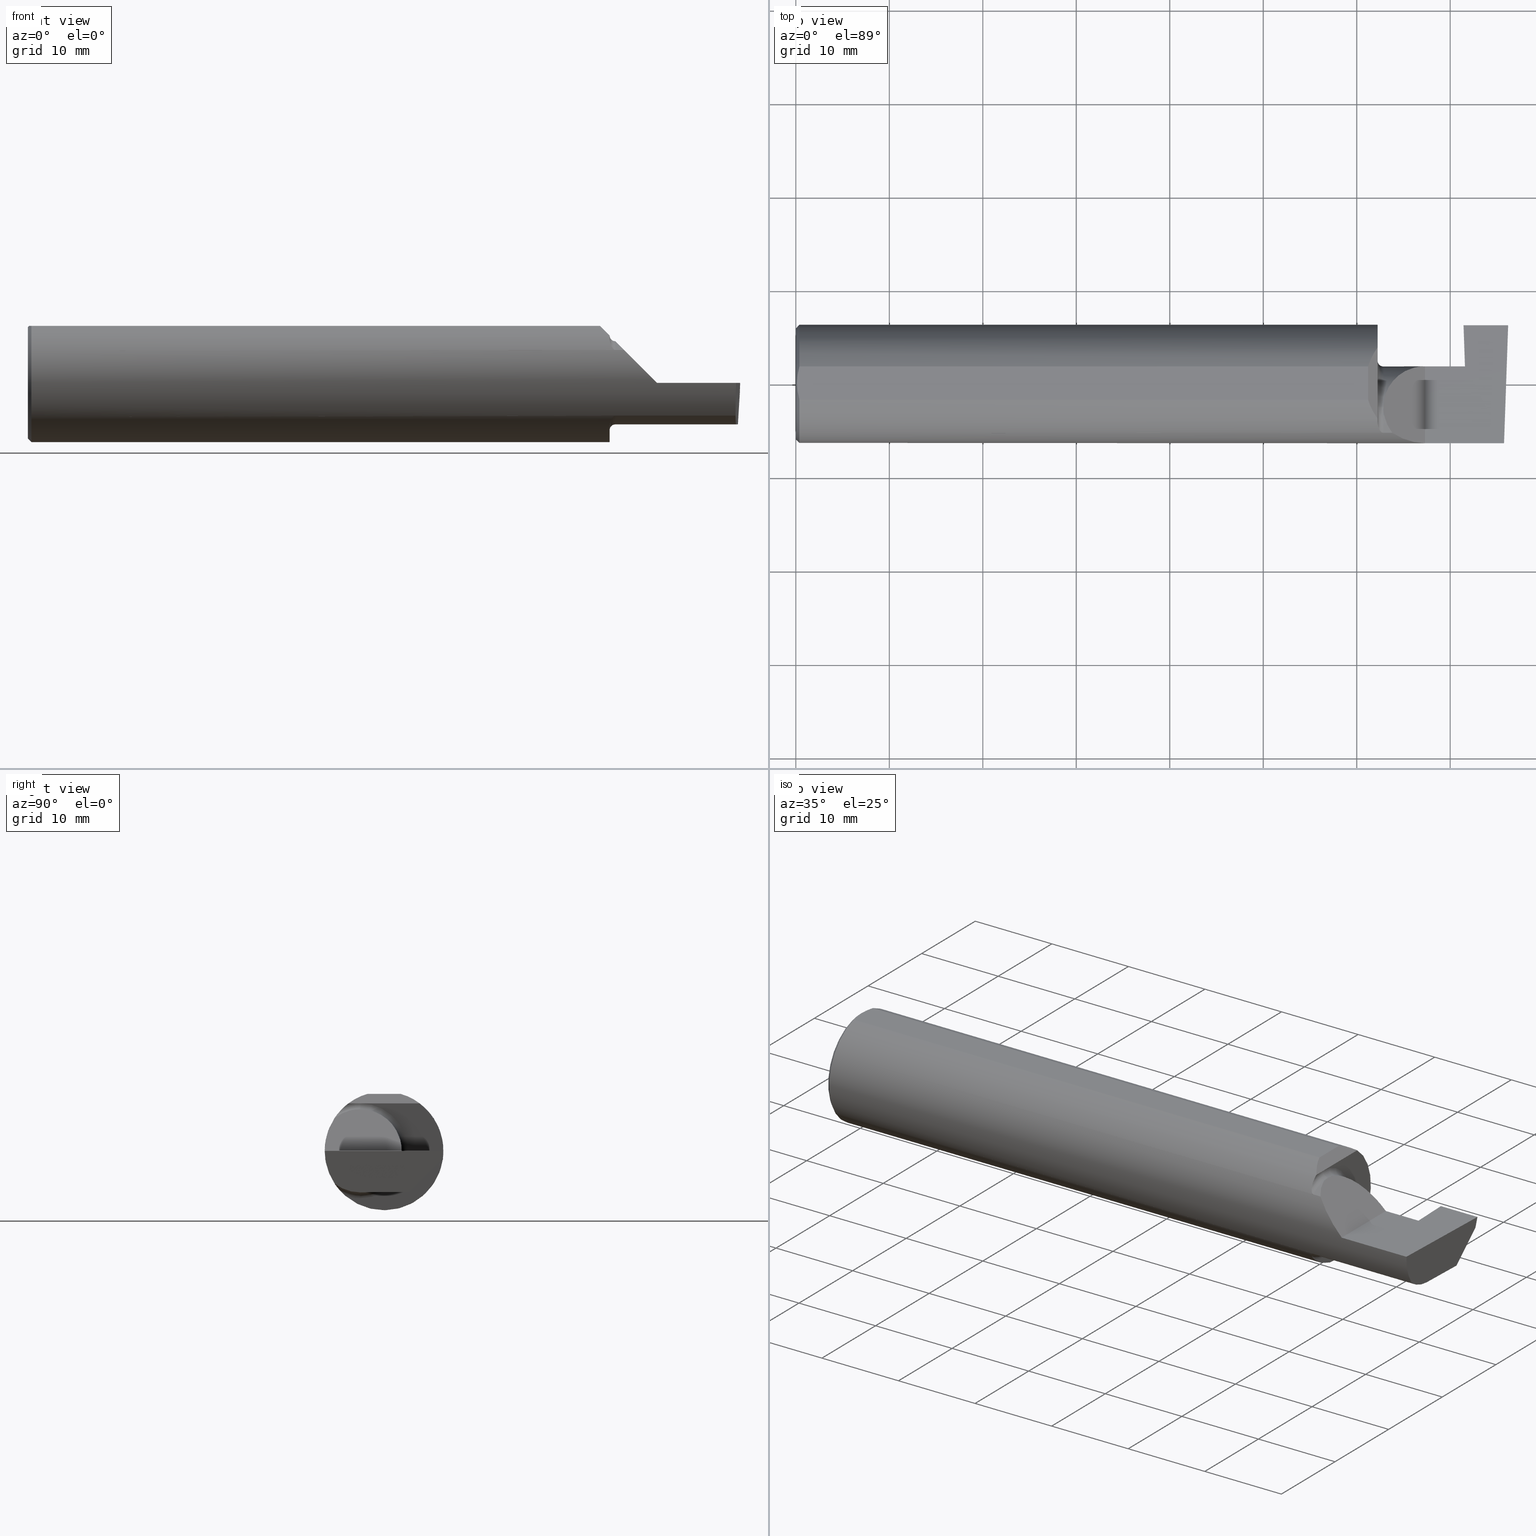
[diagram: canonical four-view strip — front | top / right | iso, engineering-drawing reading convention]
A machine part, canonical four-view strip (front | top / right | iso — engineering-drawing reading convention). The complete STEP part file that produces these views, byte-faithful:
ISO-10303-21;
HEADER;
FILE_DESCRIPTION (( 'STEP AP203' ),
    '1' );
FILE_NAME ('221580-GT187-8.STEP',
    '2024-07-23T16:20:37',
    ( '' ),
    ( '' ),
    'SwSTEP 2.0',
    'SolidWorks 2024',
    '' );
FILE_SCHEMA (( 'CONFIG_CONTROL_DESIGN' ));
ENDSEC;

DATA;
#1 = DIRECTION ( 'NONE',  ( -1.000000000000000000, -0.000000000000000000, -0.000000000000000000 ) ) ;
#2 = ORIENTED_EDGE ( 'NONE', *, *, #460, .F. ) ;
#3 = EDGE_CURVE ( 'NONE', #368, #42, #330, .T. ) ;
#4 = DIRECTION ( 'NONE',  ( 0.000000000000000000, 0.000000000000000000, -1.000000000000000000 ) ) ;
#5 = CARTESIAN_POINT ( 'NONE',  ( 2.981341028891338230, -0.2497592792593408828, -0.04986346618387151042 ) ) ;
#6 = VECTOR ( 'NONE', #484, 39.37007874015748143 ) ;
#7 = ORGANIZATION ( 'UNSPECIFIED', 'UNSPECIFIED', '' ) ;
#8 = CARTESIAN_POINT ( 'NONE',  ( 2.823047045968829494, 0.1058243371481679407, -0.1749999999999999334 ) ) ;
#9 = ORIENTED_EDGE ( 'NONE', *, *, #221, .F. ) ;
#10 = CARTESIAN_POINT ( 'NONE',  ( 2.450000000000000178, -0.1616050818046604332, -0.1905487340154980169 ) ) ;
#11 = EDGE_CURVE ( 'NONE', #62, #83, #819, .T. ) ;
#12 = DIRECTION ( 'NONE',  ( 0.9990198516376381788, -5.394573431702560825E-05, 0.04426435500229557868 ) ) ;
#13 = ORIENTED_EDGE ( 'NONE', *, *, #448, .F. ) ;
#14 = CARTESIAN_POINT ( 'NONE',  ( 0.000000000000000000, 0.000000000000000000, 0.000000000000000000 ) ) ;
#15 = CC_DESIGN_PERSON_AND_ORGANIZATION_ASSIGNMENT ( #351, #796, ( #398 ) ) ;
#16 = CARTESIAN_POINT ( 'NONE',  ( 2.800000000000000266, 0.2471500000000000086, -3.306546357697639493E-19 ) ) ;
#17 = ADVANCED_FACE ( 'NONE', ( #258 ), #621, .F. ) ;
#18 = ORIENTED_EDGE ( 'NONE', *, *, #515, .F. ) ;
#19 = PLANE ( 'NONE',  #409 ) ;
#20 = FACE_OUTER_BOUND ( 'NONE', #667, .T. ) ;
#21 = APPROVAL_PERSON_ORGANIZATION ( #468, #382, #720 ) ;
#22 = ORIENTED_EDGE ( 'NONE', *, *, #787, .F. ) ;
#23 = DIRECTION ( 'NONE',  ( 0.9987827668610291809, 0.03485699000042567774, 0.03489949669461413911 ) ) ;
#24 = PLANE ( 'NONE',  #64 ) ;
#25 = VERTEX_POINT ( 'NONE', #8 ) ;
#26 = DIRECTION ( 'NONE',  ( 1.000000000000000000, 0.000000000000000000, 0.000000000000000000 ) ) ;
#27 = ADVANCED_FACE ( 'NONE', ( #20 ), #511, .T. ) ;
#28 = CARTESIAN_POINT ( 'NONE',  ( 2.410150000000002013, 0.06997856814768359246, 0.2398500000000000076 ) ) ;
#29 = FACE_OUTER_BOUND ( 'NONE', #728, .T. ) ;
#30 = EDGE_LOOP ( 'NONE', ( #572, #614, #284, #372 ) ) ;
#31 = B_SPLINE_CURVE_WITH_KNOTS ( 'NONE', 3,
 ( #425, #476, #104, #363, #613, #788 ),
 .UNSPECIFIED., .F., .F.,
 ( 4, 2, 4 ),
 ( 0.007845223120669340966, 0.008734561288375079086, 0.009623899456080817205 ),
 .UNSPECIFIED. ) ;
#32 = DATE_TIME_ROLE ( 'creation_date' ) ;
#33 = CARTESIAN_POINT ( 'NONE',  ( 0.000000000000000000, 0.000000000000000000, 0.000000000000000000 ) ) ;
#34 = LINE ( 'NONE', #802, #6 ) ;
#35 = AXIS2_PLACEMENT_3D ( 'NONE', #112, #661, #234 ) ;
#36 = ORIENTED_EDGE ( 'NONE', *, *, #125, .F. ) ;
#37 = CIRCLE ( 'NONE', #805, 0.2348499999999999754 ) ;
#38 = CALENDAR_DATE ( 2024, 23, 7 ) ;
#39 = CARTESIAN_POINT ( 'NONE',  ( 2.450000000000000178, -0.1008499999999999674, 0.000000000000000000 ) ) ;
#40 = DIRECTION ( 'NONE',  ( 0.000000000000000000, 0.001218716374663539022, -0.9999992573649232330 ) ) ;
#41 = EDGE_CURVE ( 'NONE', #42, #209, #705, .T. ) ;
#42 = VERTEX_POINT ( 'NONE', #775 ) ;
#43 = DIRECTION ( 'NONE',  ( 0.000000000000000000, -0.7071067811865463515, 0.7071067811865487940 ) ) ;
#44 = LINE ( 'NONE', #491, #489 ) ;
#45 = ORIENTED_EDGE ( 'NONE', *, *, #751, .F. ) ;
#46 = EDGE_CURVE ( 'NONE', #113, #446, #530, .T. ) ;
#47 = CARTESIAN_POINT ( 'NONE',  ( 2.450000000000000178, -0.1008499999999999674, 0.000000000000000000 ) ) ;
#48 = PLANE ( 'NONE',  #685 ) ;
#49 = VERTEX_POINT ( 'NONE', #590 ) ;
#50 = CARTESIAN_POINT ( 'NONE',  ( 2.475000000000000089, -0.1008499999999999674, 0.1999999999999999833 ) ) ;
#51 = DIRECTION ( 'NONE',  ( 0.000000000000000000, 0.000000000000000000, -1.000000000000000000 ) ) ;
#52 = ORIENTED_EDGE ( 'NONE', *, *, #742, .F. ) ;
#53 = SHAPE_DEFINITION_REPRESENTATION ( #153, #760 ) ;
#54 = CARTESIAN_POINT ( 'NONE',  ( 2.458176740666626170, -0.1972027065478075825, -0.1535263573771911971 ) ) ;
#55 = ADVANCED_FACE ( 'NONE', ( #388 ), #463, .F. ) ;
#56 = CARTESIAN_POINT ( 'NONE',  ( 2.468876997637614590, -0.2068363917296602017, 0.1401586554522226691 ) ) ;
#57 = EDGE_LOOP ( 'NONE', ( #52, #799, #246, #178, #737 ) ) ;
#58 = PERSON_AND_ORGANIZATION ( #504, #7 ) ;
#59 = CARTESIAN_POINT ( 'NONE',  ( 2.473318040126430528, -0.2080850024789293318, -0.1382955322609664139 ) ) ;
#60 = CARTESIAN_POINT ( 'NONE',  ( 2.450000000000000178, -0.1616050818046604332, 0.1905487340154980169 ) ) ;
#61 = B_SPLINE_CURVE_WITH_KNOTS ( 'NONE', 3,
 ( #241, #496, #748, #179, #272, #81 ),
 .UNSPECIFIED., .F., .F.,
 ( 4, 2, 4 ),
 ( 0.006064768674679246394, 0.006954995897674293680, 0.007845223120669340966 ),
 .UNSPECIFIED. ) ;
#62 = VERTEX_POINT ( 'NONE', #579 ) ;
#63 = APPLICATION_CONTEXT ( 'configuration controlled 3d designs of mechanical parts and assemblies' ) ;
#64 = AXIS2_PLACEMENT_3D ( 'NONE', #278, #532, #215 ) ;
#65 = AXIS2_PLACEMENT_3D ( 'NONE', #431, #257, #4 ) ;
#66 = SECURITY_CLASSIFICATION ( '', '', #228 ) ;
#67 = ORIENTED_EDGE ( 'NONE', *, *, #778, .F. ) ;
#68 = ADVANCED_FACE ( 'NONE', ( #133 ), #766, .F. ) ;
#69 = DATE_AND_TIME ( #810, #79 ) ;
#70 = CARTESIAN_POINT ( 'NONE',  ( 2.471700027347579542, -0.2077785947292770385, -0.1387580622202823077 ) ) ;
#71 = LINE ( 'NONE', #453, #684 ) ;
#72 = CARTESIAN_POINT ( 'NONE',  ( 0.01499999999999999944, 0.000000000000000000, 0.000000000000000000 ) ) ;
#73 = CARTESIAN_POINT ( 'NONE',  ( 2.977412177158956563, -0.2496672875357696664, -0.1999314649951114686 ) ) ;
#74 = EDGE_LOOP ( 'NONE', ( #146, #18, #67, #651, #226 ) ) ;
#75 = LINE ( 'NONE', #582, #669 ) ;
#76 = EDGE_CURVE ( 'NONE', #446, #204, #137, .T. ) ;
#77 = AXIS2_PLACEMENT_3D ( 'NONE', #108, #186, #443 ) ;
#78 = VECTOR ( 'NONE', #678, 39.37007874015748143 ) ;
#79 = LOCAL_TIME ( 9, 20, 37.00000000000000000, #677 ) ;
#80 = EDGE_LOOP ( 'NONE', ( #151, #747, #360, #325, #309, #259, #467 ) ) ;
#81 = CARTESIAN_POINT ( 'NONE',  ( 0.004999999999999471013, 5.665694022114171174E-17, 0.2398500000000000076 ) ) ;
#82 = CARTESIAN_POINT ( 'NONE',  ( 2.814037492458068890, 0.06794054266098487060, -0.04620338416404773385 ) ) ;
#83 = VERTEX_POINT ( 'NONE', #518 ) ;
#84 = DIRECTION ( 'NONE',  ( 1.000000000000000000, 0.000000000000000000, 0.000000000000000000 ) ) ;
#85 = CIRCLE ( 'NONE', #708, 0.2348499999999999754 ) ;
#86 = CARTESIAN_POINT ( 'NONE',  ( 0.01499999999999999944, 0.000000000000000000, -0.2498499999999999888 ) ) ;
#87 = CONICAL_SURFACE ( 'NONE', #207, 0.2498499999999999888, 0.7853981633974485010 ) ;
#88 = ORIENTED_EDGE ( 'NONE', *, *, #714, .T. ) ;
#89 = COORDINATED_UNIVERSAL_TIME_OFFSET ( 8, 0, .BEHIND. ) ;
#90 = CARTESIAN_POINT ( 'NONE',  ( 2.999764331505102355, 0.2453741512750017284, -0.006627557668249997938 ) ) ;
#91 = DIRECTION ( 'NONE',  ( 0.000000000000000000, 0.000000000000000000, 1.000000000000000000 ) ) ;
#92 = ORIENTED_EDGE ( 'NONE', *, *, #675, .T. ) ;
#93 = CARTESIAN_POINT ( 'NONE',  ( 2.800000000000000266, 0.2348243371481683328, -0.04599999999999999922 ) ) ;
#94 = LINE ( 'NONE', #86, #593 ) ;
#95 = VERTEX_POINT ( 'NONE', #393 ) ;
#96 = COORDINATED_UNIVERSAL_TIME_OFFSET ( 8, 0, .BEHIND. ) ;
#97 = PLANE ( 'NONE',  #556 ) ;
#98 = EDGE_CURVE ( 'NONE', #138, #426, #527, .T. ) ;
#99 = DIRECTION ( 'NONE',  ( -1.000000000000000000, -0.000000000000000000, -0.000000000000000000 ) ) ;
#100 = ORIENTED_EDGE ( 'NONE', *, *, #543, .F. ) ;
#101 = VECTOR ( 'NONE', #786, 39.37007874015748854 ) ;
#102 = CYLINDRICAL_SURFACE ( 'NONE', #261, 0.2498499999999999888 ) ;
#103 = EDGE_CURVE ( 'NONE', #758, #438, #384, .T. ) ;
#104 = CARTESIAN_POINT ( 'NONE',  ( 0.005880636388018714231, -0.02358947477502553597, 0.2398500000000000354 ) ) ;
#105 = VERTEX_POINT ( 'NONE', #772 ) ;
#106 = APPLICATION_PROTOCOL_DEFINITION ( 'international standard', 'config_control_design', 1994, #63 ) ;
#107 = DIRECTION ( 'NONE',  ( 0.06975638345029229470, 0.000000000000000000, -0.9975640565737800003 ) ) ;
#108 = CARTESIAN_POINT ( 'NONE',  ( 0.01499999999999999944, 0.000000000000000000, 0.000000000000000000 ) ) ;
#109 = ORIENTED_EDGE ( 'NONE', *, *, #161, .T. ) ;
#110 = B_SPLINE_CURVE_WITH_KNOTS ( 'NONE', 3,
 ( #60, #375, #122, #315, #623, #242, #180, #252, #435, #687, #56, #173, #429, #674 ),
 .UNSPECIFIED., .F., .F.,
 ( 4, 2, 2, 2, 2, 2, 4 ),
 ( 0.0003834465838148173595, 0.0008781406165086686789, 0.001372834649202519944, 0.001867528681896371209, 0.002114875698243302155, 0.002238549206416767193, 0.002362222714590232232 ),
 .UNSPECIFIED. ) ;
#111 = DIRECTION ( 'NONE',  ( 0.000000000000000000, -1.000000000000000000, 0.000000000000000000 ) ) ;
#112 = CARTESIAN_POINT ( 'NONE',  ( 2.650000000000000355, -0.2500000000000000555, 4.286263797015727350E-17 ) ) ;
#113 = VERTEX_POINT ( 'NONE', #638 ) ;
#114 = EDGE_CURVE ( 'NONE', #105, #558, #71, .T. ) ;
#115 = AXIS2_PLACEMENT_3D ( 'NONE', #264, #715, #640 ) ;
#116 = CIRCLE ( 'NONE', #765, 0.2498499999999999888 ) ;
#117 = CARTESIAN_POINT ( 'NONE',  ( 2.464302603425052141, -0.2041009206016216881, -0.1441313430770034543 ) ) ;
#118 = CARTESIAN_POINT ( 'NONE',  ( 2.823047045968829494, 0.07436332225211166047, -0.1750383420824915270 ) ) ;
#119 = EDGE_LOOP ( 'NONE', ( #433, #492, #109, #824, #777, #236 ) ) ;
#120 = CALENDAR_DATE ( 2024, 23, 7 ) ;
#121 = PLANE ( 'NONE',  #65 ) ;
#122 = CARTESIAN_POINT ( 'NONE',  ( 2.450367168219774516, -0.1713400252854603567, 0.1819601557798505298 ) ) ;
#123 = VERTEX_POINT ( 'NONE', #702 ) ;
#124 = CARTESIAN_POINT ( 'NONE',  ( 2.475000000000000089, -0.2080850024789291375, -0.1382955322609665805 ) ) ;
#125 = EDGE_CURVE ( 'NONE', #205, #313, #450, .T. ) ;
#126 = ORIENTED_EDGE ( 'NONE', *, *, #664, .F. ) ;
#127 = DIRECTION ( 'NONE',  ( 0.03487823687994490163, -0.9993915692020551855, -4.266149715957147469E-18 ) ) ;
#128 = AXIS2_PLACEMENT_3D ( 'NONE', #690, #567, #807 ) ;
#129 =( GEOMETRIC_REPRESENTATION_CONTEXT ( 3 ) GLOBAL_UNCERTAINTY_ASSIGNED_CONTEXT ( ( #288 ) ) GLOBAL_UNIT_ASSIGNED_CONTEXT ( ( #361, #538, #427 ) ) REPRESENTATION_CONTEXT ( 'NONE', 'WORKASPACE' ) );
#130 = CC_DESIGN_PERSON_AND_ORGANIZATION_ASSIGNMENT ( #655, #734, ( #522 ) ) ;
#131 = ORIENTED_EDGE ( 'NONE', *, *, #817, .T. ) ;
#132 = CARTESIAN_POINT ( 'NONE',  ( 0.000000000000000000, -0.06997856814768359246, 0.2398500000000000076 ) ) ;
#133 = FACE_OUTER_BOUND ( 'NONE', #597, .T. ) ;
#134 = ORIENTED_EDGE ( 'NONE', *, *, #247, .F. ) ;
#135 = EDGE_CURVE ( 'NONE', #209, #276, #547, .T. ) ;
#136 = FACE_OUTER_BOUND ( 'NONE', #809, .T. ) ;
#137 = LINE ( 'NONE', #142, #343 ) ;
#138 = VERTEX_POINT ( 'NONE', #359 ) ;
#139 = EDGE_CURVE ( 'NONE', #83, #205, #283, .T. ) ;
#140 = DIRECTION ( 'NONE',  ( 0.000000000000000000, 0.000000000000000000, -1.000000000000000000 ) ) ;
#141 = AXIS2_PLACEMENT_3D ( 'NONE', #578, #260, #140 ) ;
#142 = CARTESIAN_POINT ( 'NONE',  ( 2.814037492458069334, -2.734234795761636860, -0.04961844366980466131 ) ) ;
#143 = ORIENTED_EDGE ( 'NONE', *, *, #334, .T. ) ;
#144 = CARTESIAN_POINT ( 'NONE',  ( 2.418565128400055997, 0.09882123526961361648, 0.2314348715999461070 ) ) ;
#145 = CC_DESIGN_PERSON_AND_ORGANIZATION_ASSIGNMENT ( #534, #738, ( #395 ) ) ;
#146 = ORIENTED_EDGE ( 'NONE', *, *, #114, .F. ) ;
#147 = ORIENTED_EDGE ( 'NONE', *, *, #135, .T. ) ;
#148 = FACE_OUTER_BOUND ( 'NONE', #627, .T. ) ;
#149 = EDGE_CURVE ( 'NONE', #123, #380, #94, .T. ) ;
#150 = DIRECTION ( 'NONE',  ( 1.000000000000000000, 0.000000000000000000, 0.000000000000000000 ) ) ;
#151 = ORIENTED_EDGE ( 'NONE', *, *, #135, .F. ) ;
#152 = LENGTH_MEASURE_WITH_UNIT ( LENGTH_MEASURE( 0.02539999999999999897 ), #233 );
#153 = PRODUCT_DEFINITION_SHAPE ( 'NONE', 'NONE',  #522 ) ;
#154 = FACE_OUTER_BOUND ( 'NONE', #57, .T. ) ;
#155 = ORIENTED_EDGE ( 'NONE', *, *, #352, .T. ) ;
#156 = APPROVAL_DATE_TIME ( #217, #232 ) ;
#157 = LINE ( 'NONE', #535, #101 ) ;
#158 = DIRECTION ( 'NONE',  ( 0.7071067811865473507, 8.659560562354935323E-17, 0.7071067811865476838 ) ) ;
#159 = ORIENTED_EDGE ( 'NONE', *, *, #619, .F. ) ;
#160 = LINE ( 'NONE', #615, #725 ) ;
#161 = EDGE_CURVE ( 'NONE', #733, #113, #604, .T. ) ;
#162 = CARTESIAN_POINT ( 'NONE',  ( 2.813372681961406219, 0.07204909126152568566, -0.03119400421533605194 ) ) ;
#163 = CARTESIAN_POINT ( 'NONE',  ( 0.000000000000000000, 0.000000000000000000, 0.000000000000000000 ) ) ;
#164 = ORIENTED_EDGE ( 'NONE', *, *, #729, .F. ) ;
#165 = DATE_AND_TIME ( #472, #753 ) ;
#166 = EDGE_CURVE ( 'NONE', #105, #138, #34, .T. ) ;
#167 = CARTESIAN_POINT ( 'NONE',  ( 2.814037492458068890, 0.06794054266098487060, -0.04620338416404773385 ) ) ;
#168 = CARTESIAN_POINT ( 'NONE',  ( 2.982644377562602589, -0.2498499999999999610, 1.813681607540488003E-17 ) ) ;
#169 = VECTOR ( 'NONE', #494, 39.37007874015748143 ) ;
#170 = ORIENTED_EDGE ( 'NONE', *, *, #98, .F. ) ;
#171 = APPLICATION_PROTOCOL_DEFINITION ( 'international standard', 'config_control_design', 1994, #262 ) ;
#172 = DIRECTION ( 'NONE',  ( -1.000000000000000000, -0.000000000000000000, -0.000000000000000000 ) ) ;
#173 = CARTESIAN_POINT ( 'NONE',  ( 2.471718393013768278, -0.2077830475237243124, 0.1387513848711933728 ) ) ;
#174 = VERTEX_POINT ( 'NONE', #736 ) ;
#175 = LINE ( 'NONE', #90, #451 ) ;
#176 = PLANE ( 'NONE',  #35 ) ;
#177 = EDGE_CURVE ( 'NONE', #591, #123, #85, .T. ) ;
#178 = ORIENTED_EDGE ( 'NONE', *, *, #549, .F. ) ;
#179 = CARTESIAN_POINT ( 'NONE',  ( 0.005899890343961325216, 0.02378560009989248020, 0.2398500000000000076 ) ) ;
#180 = CARTESIAN_POINT ( 'NONE',  ( 2.458182335268384922, -0.1972192205116133357, 0.1535061413537207597 ) ) ;
#181 = PRODUCT_RELATED_PRODUCT_CATEGORY ( 'detail', '', ( #395 ) ) ;
#182 = ORIENTED_EDGE ( 'NONE', *, *, #583, .F. ) ;
#183 = AXIS2_PLACEMENT_3D ( 'NONE', #743, #749, #754 ) ;
#184 = VECTOR ( 'NONE', #196, 39.37007874015748143 ) ;
#185 = CARTESIAN_POINT ( 'NONE',  ( 2.468863362722769406, -0.2068301641248772305, -0.1401678546132358316 ) ) ;
#186 = DIRECTION ( 'NONE',  ( 1.000000000000000000, 0.000000000000000000, 0.000000000000000000 ) ) ;
#187 = ORIENTED_EDGE ( 'NONE', *, *, #779, .T. ) ;
#188 = EDGE_CURVE ( 'NONE', #113, #498, #662, .T. ) ;
#189 = CARTESIAN_POINT ( 'NONE',  ( 2.450000000000000178, -0.1616050818046604332, -0.1905487340154980169 ) ) ;
#190 = FACE_OUTER_BOUND ( 'NONE', #509, .T. ) ;
#191 = VERTEX_POINT ( 'NONE', #298 ) ;
#192 = DIRECTION ( 'NONE',  ( -1.000000000000000000, 2.404289197831222590E-16, 1.224646799147351482E-16 ) ) ;
#193 = APPROVAL ( #564, 'UNSPECIFIED' ) ;
#194 = ADVANCED_FACE ( 'NONE', ( #354 ), #610, .F. ) ;
#195 = ORIENTED_EDGE ( 'NONE', *, *, #227, .T. ) ;
#196 = DIRECTION ( 'NONE',  ( 0.000000000000000000, -1.000000000000000000, 0.000000000000000000 ) ) ;
#197 = VECTOR ( 'NONE', #732, 39.37007874015748854 ) ;
#198 = VECTOR ( 'NONE', #771, 39.37007874015748143 ) ;
#199 = CARTESIAN_POINT ( 'NONE',  ( 2.812000000000000277, -0.1008499999999999674, 0.000000000000000000 ) ) ;
#200 = CARTESIAN_POINT ( 'NONE',  ( 2.818975647374413640, 0.2473935949740175555, -0.1998781654038191691 ) ) ;
#201 = DIRECTION ( 'NONE',  ( 0.000000000000000000, 0.000000000000000000, 1.000000000000000000 ) ) ;
#202 = EDGE_CURVE ( 'NONE', #659, #654, #423, .T. ) ;
#203 = CARTESIAN_POINT ( 'NONE',  ( 2.814037492458068890, 0.07420629955631165287, -0.04619574797784883891 ) ) ;
#204 = VERTEX_POINT ( 'NONE', #798 ) ;
#205 = VERTEX_POINT ( 'NONE', #783 ) ;
#206 = CARTESIAN_POINT ( 'NONE',  ( 2.450000000000000178, -0.1008499999999999674, 0.2000000000000015099 ) ) ;
#207 = AXIS2_PLACEMENT_3D ( 'NONE', #72, #324, #769 ) ;
#208 = DIRECTION ( 'NONE',  ( 0.000000000000000000, -0.2588190451025216832, -0.9659258262890679791 ) ) ;
#209 = VERTEX_POINT ( 'NONE', #168 ) ;
#210 = CARTESIAN_POINT ( 'NONE',  ( 2.600434159100403875, -0.2498499999999999055, 0.04956584089959691769 ) ) ;
#211 = EDGE_CURVE ( 'NONE', #523, #548, #31, .T. ) ;
#212 = DIRECTION ( 'NONE',  ( -0.04317993108637931815, -0.7064472710512013087, -0.7064472710511988662 ) ) ;
#213 = ORIENTED_EDGE ( 'NONE', *, *, #507, .F. ) ;
#214 = MECHANICAL_CONTEXT ( 'NONE', #63, 'mechanical' ) ;
#215 = DIRECTION ( 'NONE',  ( -0.03489949670249940100, -0.9993908270190957621, 0.000000000000000000 ) ) ;
#216 = ORIENTED_EDGE ( 'NONE', *, *, #812, .T. ) ;
#217 = DATE_AND_TIME ( #785, #249 ) ;
#218 = FACE_OUTER_BOUND ( 'NONE', #119, .T. ) ;
#219 = VECTOR ( 'NONE', #596, 39.37007874015748143 ) ;
#220 = DIRECTION ( 'NONE',  ( -1.000000000000000000, -0.000000000000000000, -0.000000000000000000 ) ) ;
#221 = EDGE_CURVE ( 'NONE', #25, #426, #44, .T. ) ;
#222 = AXIS2_PLACEMENT_3D ( 'NONE', #442, #757, #250 ) ;
#223 = ORIENTED_EDGE ( 'NONE', *, *, #592, .F. ) ;
#224 = DIRECTION ( 'NONE',  ( -1.000000000000000000, -0.000000000000000000, -0.000000000000000000 ) ) ;
#225 = DIRECTION ( 'NONE',  ( 0.000000000000000000, 0.000000000000000000, 1.000000000000000000 ) ) ;
#226 = ORIENTED_EDGE ( 'NONE', *, *, #603, .F. ) ;
#227 = EDGE_CURVE ( 'NONE', #591, #523, #349, .T. ) ;
#228 = SECURITY_CLASSIFICATION_LEVEL ( 'unclassified' ) ;
#229 = CARTESIAN_POINT ( 'NONE',  ( 2.823047045968829938, -2.734077773065836769, -0.1784610377744473286 ) ) ;
#230 = DIRECTION ( 'NONE',  ( -1.000000000000000000, -0.000000000000000000, -0.000000000000000000 ) ) ;
#231 = ORIENTED_EDGE ( 'NONE', *, *, #507, .T. ) ;
#232 = APPROVAL ( #416, 'UNSPECIFIED' ) ;
#233 =( LENGTH_UNIT ( ) NAMED_UNIT ( * ) SI_UNIT ( $, .METRE. ) );
#234 = DIRECTION ( 'NONE',  ( -0.7071067811865454633, 0.000000000000000000, 0.7071067811865495711 ) ) ;
#235 = DIRECTION ( 'NONE',  ( 0.000000000000000000, 0.000000000000000000, 1.000000000000000000 ) ) ;
#236 = ORIENTED_EDGE ( 'NONE', *, *, #778, .T. ) ;
#237 = CARTESIAN_POINT ( 'NONE',  ( 2.823044364828742658, 0.07436327552395319285, -0.1750000000000000167 ) ) ;
#238 = EDGE_CURVE ( 'NONE', #477, #784, #408, .T. ) ;
#239 = DIRECTION ( 'NONE',  ( 0.000000000000000000, 0.000000000000000000, 1.000000000000000000 ) ) ;
#240 = ORIENTED_EDGE ( 'NONE', *, *, #41, .T. ) ;
#241 = CARTESIAN_POINT ( 'NONE',  ( 0.01499999999999998036, 0.06997856814768359246, 0.2398500000000000076 ) ) ;
#242 = CARTESIAN_POINT ( 'NONE',  ( 2.456159563508733878, -0.1933019864360850659, 0.1584298865564828795 ) ) ;
#243 = ORIENTED_EDGE ( 'NONE', *, *, #487, .F. ) ;
#244 = CARTESIAN_POINT ( 'NONE',  ( 0.01499999999999999944, 0.000000000000000000, 0.000000000000000000 ) ) ;
#245 = FACE_OUTER_BOUND ( 'NONE', #568, .T. ) ;
#246 = ORIENTED_EDGE ( 'NONE', *, *, #587, .T. ) ;
#247 = EDGE_CURVE ( 'NONE', #209, #49, #653, .T. ) ;
#248 = PERSON_AND_ORGANIZATION ( #504, #7 ) ;
#249 = LOCAL_TIME ( 9, 20, 37.00000000000000000, #96 ) ;
#250 = DIRECTION ( 'NONE',  ( 0.000000000000000000, 0.000000000000000000, 1.000000000000000000 ) ) ;
#251 =( BOUNDED_CURVE ( )  B_SPLINE_CURVE ( 3, ( #497, #626, #370, #816 ),
 .UNSPECIFIED., .F., .T. ) 
 B_SPLINE_CURVE_WITH_KNOTS ( ( 4, 4 ),
 ( 5.623622464215678463, 6.283185307179586232 ),
 .UNSPECIFIED. ) 
 CURVE ( )  GEOMETRIC_REPRESENTATION_ITEM ( )  RATIONAL_B_SPLINE_CURVE ( ( 1.000000000000000000, 0.9640754331822828371, 0.9640754331822828371, 1.000000000000000000 ) ) 
 REPRESENTATION_ITEM ( '' )  );
#252 = CARTESIAN_POINT ( 'NONE',  ( 2.462616400345756240, -0.2024684335577105199, 0.1464246884265635318 ) ) ;
#253 = ORIENTED_EDGE ( 'NONE', *, *, #592, .T. ) ;
#254 = ADVANCED_FACE ( 'NONE', ( #29 ), #24, .F. ) ;
#255 = DIRECTION ( 'NONE',  ( 0.000000000000000000, 0.000000000000000000, 1.000000000000000000 ) ) ;
#256 = ORIENTED_EDGE ( 'NONE', *, *, #3, .F. ) ;
#257 = DIRECTION ( 'NONE',  ( 1.000000000000000000, 0.000000000000000000, 0.000000000000000000 ) ) ;
#258 = FACE_OUTER_BOUND ( 'NONE', #528, .T. ) ;
#259 = ORIENTED_EDGE ( 'NONE', *, *, #139, .F. ) ;
#260 = DIRECTION ( 'NONE',  ( 1.000000000000000000, 0.000000000000000000, 0.000000000000000000 ) ) ;
#261 = AXIS2_PLACEMENT_3D ( 'NONE', #33, #356, #665 ) ;
#262 = APPLICATION_CONTEXT ( 'configuration controlled 3d designs of mechanical parts and assemblies' ) ;
#263 = CC_DESIGN_SECURITY_CLASSIFICATION ( #66, ( #398 ) ) ;
#264 = CARTESIAN_POINT ( 'NONE',  ( 2.450000000000000178, -0.1008499999999999674, 0.000000000000000000 ) ) ;
#265 = ORIENTED_EDGE ( 'NONE', *, *, #139, .T. ) ;
#266 = CARTESIAN_POINT ( 'NONE',  ( 2.450000000000000178, -0.2500000000000000555, 0.2000000000000015099 ) ) ;
#267 = CARTESIAN_POINT ( 'NONE',  ( 2.980602402804240381, -0.2354324170447332498, -0.09714751587400637101 ) ) ;
#268 = EDGE_LOOP ( 'NONE', ( #320, #231, #355, #502 ) ) ;
#269 =( BOUNDED_CURVE ( )  B_SPLINE_CURVE ( 3, ( #594, #144, #461, #646 ),
 .UNSPECIFIED., .F., .F. ) 
 B_SPLINE_CURVE_WITH_KNOTS ( ( 4, 4 ),
 ( 0.2838798623474212968, 0.6427002007837403497 ),
 .UNSPECIFIED. ) 
 CURVE ( )  GEOMETRIC_REPRESENTATION_ITEM ( )  RATIONAL_B_SPLINE_CURVE ( ( 1.000000000000000000, 0.9892994125303244957, 0.9892994125303244957, 1.000000000000000000 ) ) 
 REPRESENTATION_ITEM ( '' )  );
#270 = ORIENTED_EDGE ( 'NONE', *, *, #404, .F. ) ;
#271 = ORIENTED_EDGE ( 'NONE', *, *, #714, .F. ) ;
#272 = CARTESIAN_POINT ( 'NONE',  ( 0.004999999999999748569, 0.01185123536186986730, 0.2398500000000000354 ) ) ;
#273 = VECTOR ( 'NONE', #781, 39.37007874015748854 ) ;
#274 = AXIS2_PLACEMENT_3D ( 'NONE', #307, #387, #369 ) ;
#275 = DIRECTION ( 'NONE',  ( 0.000000000000000000, -0.9659258262890680902, 0.2588190451025217387 ) ) ;
#276 = VERTEX_POINT ( 'NONE', #470 ) ;
#277 = DIRECTION ( 'NONE',  ( 0.000000000000000000, 0.000000000000000000, 1.000000000000000000 ) ) ;
#278 = CARTESIAN_POINT ( 'NONE',  ( 2.994767799596354418, 0.2473327124642303587, -0.1999314649951115241 ) ) ;
#279 = ORIENTED_EDGE ( 'NONE', *, *, #211, .T. ) ;
#280 = APPROVAL_STATUS ( 'not_yet_approved' ) ;
#281 = DIRECTION ( 'NONE',  ( 0.000000000000000000, -0.7071067811865486830, -0.7071067811865462405 ) ) ;
#282 = ADVANCED_FACE ( 'NONE', ( #154 ), #414, .F. ) ;
#283 = LINE ( 'NONE', #290, #555 ) ;
#284 = ORIENTED_EDGE ( 'NONE', *, *, #460, .T. ) ;
#285 = CARTESIAN_POINT ( 'NONE',  ( 2.410150000000002013, -0.06997856814768374512, 0.2398500000000000076 ) ) ;
#286 = FACE_OUTER_BOUND ( 'NONE', #481, .T. ) ;
#287 = CIRCLE ( 'NONE', #396, 0.1749999999999999889 ) ;
#288 = UNCERTAINTY_MEASURE_WITH_UNIT (LENGTH_MEASURE( 1.000000000000000082E-05 ), #361, 'distance_accuracy_value', 'NONE');
#289 = ADVANCED_FACE ( 'NONE', ( #631 ), #48, .F. ) ;
#290 = CARTESIAN_POINT ( 'NONE',  ( 2.450000000000000178, 0.07414999999999997982, 6.735557395310432655E-17 ) ) ;
#291 = VERTEX_POINT ( 'NONE', #312 ) ;
#292 = PERSON_AND_ORGANIZATION_ROLE ( 'creator' ) ;
#293 = DIRECTION ( 'NONE',  ( -1.000000000000000000, -0.000000000000000000, -0.000000000000000000 ) ) ;
#294 = CARTESIAN_POINT ( 'NONE',  ( 2.450000000000000178, -0.1008499999999999674, 0.000000000000000000 ) ) ;
#295 = ORIENTED_EDGE ( 'NONE', *, *, #166, .T. ) ;
#296 = DATE_AND_TIME ( #38, #490 ) ;
#297 = PLANE ( 'NONE',  #740 ) ;
#298 = CARTESIAN_POINT ( 'NONE',  ( 2.450000000000000178, -0.1497498664440119476, 0.2000000000000015099 ) ) ;
#299 = ORIENTED_EDGE ( 'NONE', *, *, #412, .F. ) ;
#300 = EDGE_CURVE ( 'NONE', #498, #605, #432, .T. ) ;
#301 =( BOUNDED_CURVE ( )  B_SPLINE_CURVE ( 3, ( #780, #210, #327, #337 ),
 .UNSPECIFIED., .F., .F. ) 
 B_SPLINE_CURVE_WITH_KNOTS ( ( 4, 4 ),
 ( 4.712388980384689674, 5.298966915116346321 ),
 .UNSPECIFIED. ) 
 CURVE ( )  GEOMETRIC_REPRESENTATION_ITEM ( )  RATIONAL_B_SPLINE_CURVE ( ( 1.000000000000000000, 0.9715321379117538569, 0.9715321379117538569, 1.000000000000000000 ) ) 
 REPRESENTATION_ITEM ( '' )  );
#302 = CARTESIAN_POINT ( 'NONE',  ( 2.450000000000000178, 0.000000000000000000, 0.000000000000000000 ) ) ;
#303 = CARTESIAN_POINT ( 'NONE',  ( 2.980479240051444378, -0.2080850024789291652, -0.1382955322609665250 ) ) ;
#304 = AXIS2_PLACEMENT_3D ( 'NONE', #466, #644, #718 ) ;
#305 = ORIENTED_EDGE ( 'NONE', *, *, #543, .T. ) ;
#306 = VECTOR ( 'NONE', #488, 39.37007874015748854 ) ;
#307 = CARTESIAN_POINT ( 'NONE',  ( 3.000000000000000444, -0.2500000000000000555, 0.000000000000000000 ) ) ;
#308 = CARTESIAN_POINT ( 'NONE',  ( 0.000000000000000000, 0.000000000000000000, 0.000000000000000000 ) ) ;
#309 = ORIENTED_EDGE ( 'NONE', *, *, #583, .T. ) ;
#310 = CARTESIAN_POINT ( 'NONE',  ( 2.451385488563270432, -0.1808287530430327805, -0.1728790649396284851 ) ) ;
#311 = EDGE_CURVE ( 'NONE', #716, #62, #251, .T. ) ;
#312 = CARTESIAN_POINT ( 'NONE',  ( 2.818037608447157005, 0.07414999999999993818, 1.114198301901933043E-17 ) ) ;
#313 = VERTEX_POINT ( 'NONE', #823 ) ;
#314 = CARTESIAN_POINT ( 'NONE',  ( 2.431992138630818978, -0.1256992788918499804, 0.2180078613691826817 ) ) ;
#315 = CARTESIAN_POINT ( 'NONE',  ( 2.451849548162864600, -0.1805300287242675161, 0.1728462070311779508 ) ) ;
#316 = ADVANCED_FACE ( 'NONE', ( #245 ), #739, .F. ) ;
#317 = VERTEX_POINT ( 'NONE', #746 ) ;
#318 = AXIS2_PLACEMENT_3D ( 'NONE', #199, #99, #91 ) ;
#319 = CARTESIAN_POINT ( 'NONE',  ( 2.450000000000000178, -0.1716188362992554783, -0.1820560320165480195 ) ) ;
#320 = ORIENTED_EDGE ( 'NONE', *, *, #630, .T. ) ;
#321 = LINE ( 'NONE', #576, #78 ) ;
#322 = CARTESIAN_POINT ( 'NONE',  ( 2.475000000000000089, -0.1008499999999999674, 0.000000000000000000 ) ) ;
#323 = ADVANCED_FACE ( 'NONE', ( #190 ), #436, .T. ) ;
#324 = DIRECTION ( 'NONE',  ( 1.000000000000000000, 0.000000000000000000, 0.000000000000000000 ) ) ;
#325 = ORIENTED_EDGE ( 'NONE', *, *, #603, .T. ) ;
#326 = VECTOR ( 'NONE', #220, 39.37007874015748143 ) ;
#327 = CARTESIAN_POINT ( 'NONE',  ( 2.552984868485333347, -0.2355204011147992438, 0.09701513151466735485 ) ) ;
#328 = CIRCLE ( 'NONE', #141, 0.2498499999999999888 ) ;
#329 = DIMENSIONAL_EXPONENTS ( 1.000000000000000000, 0.000000000000000000, 0.000000000000000000, 0.000000000000000000, 0.000000000000000000, 0.000000000000000000, 0.000000000000000000 ) ;
#330 =( BOUNDED_CURVE ( )  B_SPLINE_CURVE ( 3, ( #770, #267, #5, #331 ),
 .UNSPECIFIED., .F., .F. ) 
 B_SPLINE_CURVE_WITH_KNOTS ( ( 4, 4 ),
 ( 0.05713034791898994463, 0.6418805321923577445 ),
 .UNSPECIFIED. ) 
 CURVE ( )  GEOMETRIC_REPRESENTATION_ITEM ( )  RATIONAL_B_SPLINE_CURVE ( ( 1.000000000000000000, 0.9717080070095436284, 0.9717080070095436284, 1.000000000000000000 ) ) 
 REPRESENTATION_ITEM ( '' )  );
#331 = CARTESIAN_POINT ( 'NONE',  ( 2.982632426700502215, -0.2498495826666993769, -0.0004566631977430677986 ) ) ;
#332 = ORIENTED_EDGE ( 'NONE', *, *, #694, .T. ) ;
#333 = DIRECTION ( 'NONE',  ( -1.000000000000000000, -0.000000000000000000, -0.000000000000000000 ) ) ;
#334 = EDGE_CURVE ( 'NONE', #62, #758, #789, .T. ) ;
#335 = CARTESIAN_POINT ( 'NONE',  ( 2.819564601548836702, 0.04629714416892590639, -0.1252712066320192108 ) ) ;
#336 = ORIENTED_EDGE ( 'NONE', *, *, #619, .T. ) ;
#337 = CARTESIAN_POINT ( 'NONE',  ( 2.511704467739034552, -0.2080850024789292485, 0.1382955322609664139 ) ) ;
#338 = CC_DESIGN_PERSON_AND_ORGANIZATION_ASSIGNMENT ( #606, #292, ( #398 ) ) ;
#339 = DIRECTION ( 'NONE',  ( -1.000000000000000000, -0.000000000000000000, -0.000000000000000000 ) ) ;
#340 = EDGE_CURVE ( 'NONE', #204, #498, #813, .T. ) ;
#341 = ORIENTED_EDGE ( 'NONE', *, *, #227, .F. ) ;
#342 = CARTESIAN_POINT ( 'NONE',  ( 2.450000000000000178, -0.1616050818046604332, 0.1905487340154980169 ) ) ;
#343 = VECTOR ( 'NONE', #588, 39.37007874015748143 ) ;
#344 = VECTOR ( 'NONE', #127, 39.37007874015748854 ) ;
#345 = CARTESIAN_POINT ( 'NONE',  ( 2.982660284539054629, -0.2493944837933358694, 2.123502703737254632E-18 ) ) ;
#346 = ORIENTED_EDGE ( 'NONE', *, *, #177, .T. ) ;
#347 = APPROVAL_ROLE ( '' ) ;
#348 = DIRECTION ( 'NONE',  ( -0.03432699337968037057, -0.2586665114180216052, -0.9653565628286482347 ) ) ;
#349 = LINE ( 'NONE', #727, #473 ) ;
#350 = EDGE_LOOP ( 'NONE', ( #544, #676, #271, #216 ) ) ;
#351 = PERSON_AND_ORGANIZATION ( #504, #7 ) ;
#352 = EDGE_CURVE ( 'NONE', #659, #174, #110, .T. ) ;
#353 = FACE_OUTER_BOUND ( 'NONE', #506, .T. ) ;
#354 = FACE_OUTER_BOUND ( 'NONE', #818, .T. ) ;
#355 = ORIENTED_EDGE ( 'NONE', *, *, #166, .F. ) ;
#356 = DIRECTION ( 'NONE',  ( -1.000000000000000000, -0.000000000000000000, -0.000000000000000000 ) ) ;
#357 = AXIS2_PLACEMENT_3D ( 'NONE', #418, #666, #40 ) ;
#358 = AXIS2_PLACEMENT_3D ( 'NONE', #39, #293, #793 ) ;
#359 = CARTESIAN_POINT ( 'NONE',  ( 2.998364291748493393, 0.2348243371481683328, -0.04599999999999999922 ) ) ;
#360 = ORIENTED_EDGE ( 'NONE', *, *, #630, .F. ) ;
#361 =( CONVERSION_BASED_UNIT ( 'INCH', #152 ) LENGTH_UNIT ( ) NAMED_UNIT ( #329 ) );
#362 = FACE_OUTER_BOUND ( 'NONE', #706, .T. ) ;
#363 = CARTESIAN_POINT ( 'NONE',  ( 0.009274236576542584445, -0.04692405468904851940, 0.2398500000000000076 ) ) ;
#364 = EDGE_CURVE ( 'NONE', #174, #62, #287, .T. ) ;
#365 = ORIENTED_EDGE ( 'NONE', *, *, #549, .T. ) ;
#366 = DIRECTION ( 'NONE',  ( 0.000000000000000000, -0.000000000000000000, 1.000000000000000000 ) ) ;
#367 = CARTESIAN_POINT ( 'NONE',  ( 2.475000000000000089, -0.1008499999999999674, 0.000000000000000000 ) ) ;
#368 = VERTEX_POINT ( 'NONE', #303 ) ;
#369 = DIRECTION ( 'NONE',  ( -1.000000000000000000, 0.000000000000000000, 1.224646799147351482E-16 ) ) ;
#370 = CARTESIAN_POINT ( 'NONE',  ( 2.475000000000001421, -0.1400387324517231857, 0.1750000000000000167 ) ) ;
#371 = VECTOR ( 'NONE', #230, 39.37007874015748143 ) ;
#372 = ORIENTED_EDGE ( 'NONE', *, *, #238, .T. ) ;
#373 = CIRCLE ( 'NONE', #513, 0.2498499999999999888 ) ;
#374 = ADVANCED_FACE ( 'NONE', ( #557 ), #176, .F. ) ;
#375 = CARTESIAN_POINT ( 'NONE',  ( 2.450000000000001066, -0.1665641037263010105, 0.1863429692936361126 ) ) ;
#376 = ORIENTED_EDGE ( 'NONE', *, *, #177, .F. ) ;
#377 = CARTESIAN_POINT ( 'NONE',  ( 0.01499999999999999944, -0.06997856814768359246, 0.2398500000000000076 ) ) ;
#378 = ADVANCED_FACE ( 'NONE', ( #421 ), #417, .T. ) ;
#379 = DIRECTION ( 'NONE',  ( -0.7071067811865454633, 0.000000000000000000, 0.7071067811865495711 ) ) ;
#380 = VERTEX_POINT ( 'NONE', #550 ) ;
#381 = CARTESIAN_POINT ( 'NONE',  ( 2.467611663768900510, -0.2061921161193833452, -0.1411075319999372246 ) ) ;
#382 = APPROVAL ( #280, 'UNSPECIFIED' ) ;
#383 = ORIENTED_EDGE ( 'NONE', *, *, #202, .T. ) ;
#384 = CIRCLE ( 'NONE', #304, 0.1749999999999999889 ) ;
#385 = COORDINATED_UNIVERSAL_TIME_OFFSET ( 8, 0, .BEHIND. ) ;
#386 = TOROIDAL_SURFACE ( 'NONE', #462, 0.1999999999999999833, 0.02500000000000007425 ) ;
#387 = DIRECTION ( 'NONE',  ( -1.224646799147351482E-16, 0.000000000000000000, -1.000000000000000000 ) ) ;
#388 = FACE_OUTER_BOUND ( 'NONE', #268, .T. ) ;
#389 = ADVANCED_FACE ( 'NONE', ( #362 ), #102, .T. ) ;
#390 = CARTESIAN_POINT ( 'NONE',  ( 2.475000000000000089, -0.1008499999999999536, -0.1749999999999999889 ) ) ;
#391 = DIRECTION ( 'NONE',  ( 0.04426435506670335640, 0.000000000000000000, -0.9990198530912830499 ) ) ;
#392 = DIRECTION ( 'NONE',  ( -0.03487823687994490163, 0.9993915692020551855, -2.444309580554224040E-16 ) ) ;
#393 = CARTESIAN_POINT ( 'NONE',  ( 0.01499999999999998036, 0.06997856814768359246, 0.2398500000000000076 ) ) ;
#394 = ORIENTED_EDGE ( 'NONE', *, *, #441, .F. ) ;
#395 = PRODUCT ( '221580-GT187-8', '221580-GT187-8', '', ( #214 ) ) ;
#396 = AXIS2_PLACEMENT_3D ( 'NONE', #367, #617, #239 ) ;
#397 = DIRECTION ( 'NONE',  ( 0.000000000000000000, -1.000000000000000000, 0.000000000000000000 ) ) ;
#398 = PRODUCT_DEFINITION_FORMATION_WITH_SPECIFIED_SOURCE ( 'ANY', '', #395, .NOT_KNOWN. ) ;
#399 = ADVANCED_FACE ( 'NONE', ( #801 ), #493, .F. ) ;
#400 = CC_DESIGN_APPROVAL ( #193, ( #66 ) ) ;
#401 = CARTESIAN_POINT ( 'NONE',  ( 2.997994440247351289, 0.2287733644601109839, -0.05205097268805729954 ) ) ;
#402 = ORIENTED_EDGE ( 'NONE', *, *, #675, .F. ) ;
#403 = LINE ( 'NONE', #266, #184 ) ;
#404 = EDGE_CURVE ( 'NONE', #368, #438, #599, .T. ) ;
#405 = ORIENTED_EDGE ( 'NONE', *, *, #634, .F. ) ;
#406 = CARTESIAN_POINT ( 'NONE',  ( 2.450000000000000178, 0.2741500000000000048, 0.000000000000000000 ) ) ;
#407 = DIRECTION ( 'NONE',  ( -1.000000000000000000, -0.000000000000000000, -0.000000000000000000 ) ) ;
#408 = CIRCLE ( 'NONE', #633, 0.1999999999999999833 ) ;
#409 = AXIS2_PLACEMENT_3D ( 'NONE', #406, #84, #701 ) ;
#410 = CARTESIAN_POINT ( 'NONE',  ( 2.650000000000000355, -0.2500000000000000555, 4.286263797015727350E-17 ) ) ;
#411 = ORIENTED_EDGE ( 'NONE', *, *, #340, .T. ) ;
#412 = EDGE_CURVE ( 'NONE', #446, #313, #808, .T. ) ;
#413 = CARTESIAN_POINT ( 'NONE',  ( 2.990479469570817006, 0.1058243371481679129, -0.1749999999999999889 ) ) ;
#414 = PLANE ( 'NONE',  #524 ) ;
#415 = ORIENTED_EDGE ( 'NONE', *, *, #404, .T. ) ;
#416 = APPROVAL_STATUS ( 'not_yet_approved' ) ;
#417 = CYLINDRICAL_SURFACE ( 'NONE', #791, 0.1749999999999999889 ) ;
#418 = CARTESIAN_POINT ( 'NONE',  ( 2.825013260303944840, 0.07439359513054549788, -0.1998782938404957688 ) ) ;
#419 = ORIENTED_EDGE ( 'NONE', *, *, #41, .F. ) ;
#420 = CARTESIAN_POINT ( 'NONE',  ( 2.983262242683407006, -0.1008499999999999674, -0.1749999999999999889 ) ) ;
#421 = FACE_OUTER_BOUND ( 'NONE', #663, .T. ) ;
#422 = ADVANCED_FACE ( 'NONE', ( #286 ), #97, .F. ) ;
#423 = CIRCLE ( 'NONE', #821, 0.1999999999999999833 ) ;
#424 = AXIS2_PLACEMENT_3D ( 'NONE', #486, #478, #26 ) ;
#425 = CARTESIAN_POINT ( 'NONE',  ( 0.004999999999999471013, 5.665694022114171174E-17, 0.2398500000000000076 ) ) ;
#426 = VERTEX_POINT ( 'NONE', #413 ) ;
#427 =( NAMED_UNIT ( * ) SI_UNIT ( $, .STERADIAN. ) SOLID_ANGLE_UNIT ( ) );
#428 = DIRECTION ( 'NONE',  ( 0.000000000000000000, 0.000000000000000000, 1.000000000000000000 ) ) ;
#429 = CARTESIAN_POINT ( 'NONE',  ( 2.473329956043142985, -0.2080850024798593101, 0.1382955322595671721 ) ) ;
#430 = ORIENTED_EDGE ( 'NONE', *, *, #334, .F. ) ;
#431 = CARTESIAN_POINT ( 'NONE',  ( 2.450000000000000178, 0.2741500000000000048, 0.000000000000000000 ) ) ;
#432 = LINE ( 'NONE', #570, #169 ) ;
#433 = ORIENTED_EDGE ( 'NONE', *, *, #221, .T. ) ;
#434 = DIRECTION ( 'NONE',  ( 0.000000000000000000, 0.000000000000000000, -1.000000000000000000 ) ) ;
#435 = CARTESIAN_POINT ( 'NONE',  ( 2.464343523383979218, -0.2041337200786086103, 0.1440846171672507392 ) ) ;
#436 = CONICAL_SURFACE ( 'NONE', #77, 0.2498499999999999888, 0.7853981633974485010 ) ;
#437 = VECTOR ( 'NONE', #458, 39.37007874015748854 ) ;
#438 = VERTEX_POINT ( 'NONE', #735 ) ;
#439 = AXIS2_PLACEMENT_3D ( 'NONE', #200, #23, #586 ) ;
#440 = DATE_TIME_ROLE ( 'classification_date' ) ;
#441 = EDGE_CURVE ( 'NONE', #605, #291, #745, .T. ) ;
#442 = CARTESIAN_POINT ( 'NONE',  ( 2.475000000000000089, -0.1008499999999999536, -0.1999999999999999833 ) ) ;
#443 = DIRECTION ( 'NONE',  ( 0.000000000000000000, 0.000000000000000000, -1.000000000000000000 ) ) ;
#444 = ORIENTED_EDGE ( 'NONE', *, *, #773, .T. ) ;
#445 = CARTESIAN_POINT ( 'NONE',  ( 2.812000000000000277, 0.2471500000000000086, -3.306546357697639493E-19 ) ) ;
#446 = VERTEX_POINT ( 'NONE', #673 ) ;
#447 = PLANE ( 'NONE',  #274 ) ;
#448 = EDGE_CURVE ( 'NONE', #95, #380, #373, .T. ) ;
#449 = ORIENTED_EDGE ( 'NONE', *, *, #46, .T. ) ;
#450 = CIRCLE ( 'NONE', #318, 0.1749999999999999889 ) ;
#451 = VECTOR ( 'NONE', #348, 39.37007874015748143 ) ;
#452 = CARTESIAN_POINT ( 'NONE',  ( 2.993019781838999194, 0.1785693626775286258, -0.1750000000000000444 ) ) ;
#453 = CARTESIAN_POINT ( 'NONE',  ( 2.811978074428622243, 0.2472826371538613954, 0.0004950085971818933605 ) ) ;
#454 = ORIENTED_EDGE ( 'NONE', *, *, #364, .F. ) ;
#455 = CARTESIAN_POINT ( 'NONE',  ( 2.820735129764060822, 0.1720693589851506611, -0.1750000000000000444 ) ) ;
#456 = CARTESIAN_POINT ( 'NONE',  ( 2.823029432995153076, -0.1008500000000000091, -0.1749999999999999889 ) ) ;
#457 = ORIENTED_EDGE ( 'NONE', *, *, #11, .T. ) ;
#458 = DIRECTION ( 'NONE',  ( 0.04426438787458266549, 0.001217521851804792337, -0.9990191097304539358 ) ) ;
#459 = CARTESIAN_POINT ( 'NONE',  ( 2.650000000000000355, 0.07414999999999997982, 4.286263797015727350E-17 ) ) ;
#460 = EDGE_CURVE ( 'NONE', #654, #477, #645, .T. ) ;
#461 = CARTESIAN_POINT ( 'NONE',  ( 2.431992138630818978, 0.1256992788918499249, 0.2180078613691827649 ) ) ;
#462 = AXIS2_PLACEMENT_3D ( 'NONE', #520, #333, #277 ) ;
#463 = PLANE ( 'NONE',  #539 ) ;
#464 = ORIENTED_EDGE ( 'NONE', *, *, #729, .T. ) ;
#465 = CARTESIAN_POINT ( 'NONE',  ( 2.983262242683407006, -0.1008499999999999674, -0.1749999999999999889 ) ) ;
#466 = CARTESIAN_POINT ( 'NONE',  ( 2.475000000000000089, -0.1008499999999999674, 0.000000000000000000 ) ) ;
#467 = ORIENTED_EDGE ( 'NONE', *, *, #812, .F. ) ;
#468 = PERSON_AND_ORGANIZATION ( #504, #7 ) ;
#469 = ADVANCED_FACE ( 'NONE', ( #353 ), #297, .T. ) ;
#470 = CARTESIAN_POINT ( 'NONE',  ( 2.650000000000000355, -0.2498499999999999610, 4.286263797015727350E-17 ) ) ;
#471 = ORIENTED_EDGE ( 'NONE', *, *, #211, .F. ) ;
#472 = CALENDAR_DATE ( 2024, 23, 7 ) ;
#473 = VECTOR ( 'NONE', #158, 39.37007874015748143 ) ;
#474 = PLANE ( 'NONE',  #656 ) ;
#475 = VECTOR ( 'NONE', #762, 39.37007874015748143 ) ;
#476 = CARTESIAN_POINT ( 'NONE',  ( 0.004999999999999737293, -0.01183939972798750233, 0.2398500000000000631 ) ) ;
#477 = VERTEX_POINT ( 'NONE', #616 ) ;
#478 = DIRECTION ( 'NONE',  ( 0.000000000000000000, 0.000000000000000000, 1.000000000000000000 ) ) ;
#479 = CARTESIAN_POINT ( 'NONE',  ( 3.000000000000000444, -0.2498499999999999888, 0.2398500000000000076 ) ) ;
#480 = CARTESIAN_POINT ( 'NONE',  ( 2.823053225877714567, 0.1783406876520318429, -0.1750000000000000444 ) ) ;
#481 = EDGE_LOOP ( 'NONE', ( #295, #585, #9, #803 ) ) ;
#482 = CARTESIAN_POINT ( 'NONE',  ( 2.980931506555613453, -0.1771157075472509779, -0.1623092683844330475 ) ) ;
#483 = CARTESIAN_POINT ( 'NONE',  ( 2.812000000000000277, 0.07414987299205413884, -0.0002108382441793286695 ) ) ;
#484 = DIRECTION ( 'NONE',  ( 1.000000000000000000, -0.000000000000000000, -0.000000000000000000 ) ) ;
#485 = ORIENTED_EDGE ( 'NONE', *, *, #149, .T. ) ;
#486 = CARTESIAN_POINT ( 'NONE',  ( 0.000000000000000000, 0.000000000000000000, 0.000000000000000000 ) ) ;
#487 = EDGE_CURVE ( 'NONE', #784, #317, #116, .T. ) ;
#488 = DIRECTION ( 'NONE',  ( -0.03487823687206274836, -0.001217974870087560951, 0.9993908270190957621 ) ) ;
#489 = VECTOR ( 'NONE', #150, 39.37007874015748143 ) ;
#490 = LOCAL_TIME ( 9, 20, 37.00000000000000000, #730 ) ;
#491 = CARTESIAN_POINT ( 'NONE',  ( 3.000000000000000444, 0.1058243371481678574, -0.1750000000000000167 ) ) ;
#492 = ORIENTED_EDGE ( 'NONE', *, *, #751, .T. ) ;
#493 = PLANE ( 'NONE',  #501 ) ;
#494 = DIRECTION ( 'NONE',  ( 1.000000000000000000, -2.405781696046905006E-16, 5.885381770111552463E-32 ) ) ;
#495 = ORIENTED_EDGE ( 'NONE', *, *, #664, .T. ) ;
#496 = CARTESIAN_POINT ( 'NONE',  ( 0.01181966702888962925, 0.05862357455657477012, 0.2398500000000000631 ) ) ;
#497 = CARTESIAN_POINT ( 'NONE',  ( 2.511704467739034552, -0.2080850024789292485, 0.1382955322609664139 ) ) ;
#498 = VERTEX_POINT ( 'NONE', #237 ) ;
#499 = CARTESIAN_POINT ( 'NONE',  ( 2.450000000000000178, -0.1497498664440119476, 0.2000000000000015099 ) ) ;
#500 = DIRECTION ( 'NONE',  ( 0.06975643500179386225, 0.001215747646129009549, -0.9975633121428941763 ) ) ;
#501 = AXIS2_PLACEMENT_3D ( 'NONE', #229, #545, #107 ) ;
#502 = ORIENTED_EDGE ( 'NONE', *, *, #114, .T. ) ;
#503 = LINE ( 'NONE', #693, #475 ) ;
#504 = PERSON ( 'UNSPECIFIED', 'UNSPECIFIED', 'UNSPECIFIED', ('UNSPECIFIED'), ('UNSPECIFIED'), ('UNSPECIFIED') ) ;
#505 = DIRECTION ( 'NONE',  ( -0.7071067811865495711, 0.000000000000000000, -0.7071067811865454633 ) ) ;
#506 = EDGE_LOOP ( 'NONE', ( #691, #464, #711, #279, #495 ) ) ;
#507 = EDGE_CURVE ( 'NONE', #49, #138, #175, .T. ) ;
#508 = LINE ( 'NONE', #759, #344 ) ;
#509 = EDGE_LOOP ( 'NONE', ( #341, #402, #485, #253, #471 ) ) ;
#510 = CARTESIAN_POINT ( 'NONE',  ( 2.462579853086619419, -0.2024300470081737413, -0.1464774911482682185 ) ) ;
#511 = CYLINDRICAL_SURFACE ( 'NONE', #115, 0.1749999999999999889 ) ;
#512 = VERTEX_POINT ( 'NONE', #28 ) ;
#513 = AXIS2_PLACEMENT_3D ( 'NONE', #657, #172, #428 ) ;
#514 = LINE ( 'NONE', #455, #622 ) ;
#515 = EDGE_CURVE ( 'NONE', #25, #105, #157, .T. ) ;
#516 = CARTESIAN_POINT ( 'NONE',  ( 2.475000000000001421, 0.001662626584708371512, 0.1749999999999999889 ) ) ;
#517 = LINE ( 'NONE', #203, #437 ) ;
#518 = CARTESIAN_POINT ( 'NONE',  ( 2.650000000000000355, 0.07414999999999997982, 4.286263797015727350E-17 ) ) ;
#519 = ADVANCED_FACE ( 'NONE', ( #218 ), #474, .F. ) ;
#520 = CARTESIAN_POINT ( 'NONE',  ( 2.475000000000000089, -0.1008499999999999674, 0.000000000000000000 ) ) ;
#521 = CARTESIAN_POINT ( 'NONE',  ( 2.547487373415292744, 0.07414999999999996594, 0.1025126265847083745 ) ) ;
#522 = PRODUCT_DEFINITION ( 'UNKNOWN', '', #398, #546 ) ;
#523 = VERTEX_POINT ( 'NONE', #629 ) ;
#524 = AXIS2_PLACEMENT_3D ( 'NONE', #410, #505, #379 ) ;
#525 = DIRECTION ( 'NONE',  ( 1.000000000000000000, 0.000000000000000000, 0.000000000000000000 ) ) ;
#526 = VECTOR ( 'NONE', #648, 39.37007874015748854 ) ;
#527 = LINE ( 'NONE', #401, #723 ) ;
#528 = EDGE_LOOP ( 'NONE', ( #533, #611, #695, #305 ) ) ;
#529 = CARTESIAN_POINT ( 'NONE',  ( 2.511704467739034552, -0.2080850024789292485, 0.1382955322609664139 ) ) ;
#530 =( BOUNDED_CURVE ( )  B_SPLINE_CURVE ( 3, ( #456, #584, #335, #82 ),
 .UNSPECIFIED., .F., .F. ) 
 B_SPLINE_CURVE_WITH_KNOTS ( ( 4, 4 ),
 ( 3.140373936913444908, 4.443983221546780271 ),
 .UNSPECIFIED. ) 
 CURVE ( )  GEOMETRIC_REPRESENTATION_ITEM ( )  RATIONAL_B_SPLINE_CURVE ( ( 1.000000000000000000, 0.8633269052189366244, 0.8633269052189366244, 1.000000000000000000 ) ) 
 REPRESENTATION_ITEM ( '' )  );
#531 = ADVANCED_FACE ( 'NONE', ( #689 ), #121, .T. ) ;
#532 = DIRECTION ( 'NONE',  ( -0.9990483607430196145, 0.03488753751661385211, 0.02617694830785935456 ) ) ;
#533 = ORIENTED_EDGE ( 'NONE', *, *, #238, .F. ) ;
#534 = PERSON_AND_ORGANIZATION ( #504, #7 ) ;
#535 = CARTESIAN_POINT ( 'NONE',  ( 2.814003339467445741, 0.2353133442654601892, -0.04551099288270814974 ) ) ;
#536 = DIRECTION ( 'NONE',  ( 0.7071067811865473507, 0.000000000000000000, -0.7071067811865476838 ) ) ;
#537 = ORIENTED_EDGE ( 'NONE', *, *, #817, .F. ) ;
#538 =( NAMED_UNIT ( * ) PLANE_ANGLE_UNIT ( ) SI_UNIT ( $, .RADIAN. ) );
#539 = AXIS2_PLACEMENT_3D ( 'NONE', #16, #275, #208 ) ;
#540 = CIRCLE ( 'NONE', #776, 0.02500000000000007425 ) ;
#541 = CARTESIAN_POINT ( 'NONE',  ( 2.825013260303944840, 0.07439359513054549788, -0.1998782938404957688 ) ) ;
#542 = DIRECTION ( 'NONE',  ( -1.000000000000000000, -0.000000000000000000, -0.000000000000000000 ) ) ;
#543 = EDGE_CURVE ( 'NONE', #438, #784, #713, .T. ) ;
#544 = ORIENTED_EDGE ( 'NONE', *, *, #11, .F. ) ;
#545 = DIRECTION ( 'NONE',  ( 0.9975640529689512315, -8.501330957465241941E-05, 0.06975638319821843292 ) ) ;
#546 = DESIGN_CONTEXT ( 'detailed design', #262, 'design' ) ;
#547 = LINE ( 'NONE', #671, #326 ) ;
#548 = VERTEX_POINT ( 'NONE', #377 ) ;
#549 = EDGE_CURVE ( 'NONE', #191, #790, #562, .T. ) ;
#550 = CARTESIAN_POINT ( 'NONE',  ( 0.01499999999999999944, 0.000000000000000000, -0.2498499999999999888 ) ) ;
#551 = CARTESIAN_POINT ( 'NONE',  ( 3.000000000000000444, -0.1008499999999999813, -0.1749999999999999889 ) ) ;
#552 = ORIENTED_EDGE ( 'NONE', *, *, #202, .F. ) ;
#553 = DATE_AND_TIME ( #120, #608 ) ;
#554 = DIRECTION ( 'NONE',  ( 1.000000000000000000, 0.000000000000000000, 0.000000000000000000 ) ) ;
#555 = VECTOR ( 'NONE', #794, 39.37007874015748143 ) ;
#556 = AXIS2_PLACEMENT_3D ( 'NONE', #93, #43, #281 ) ;
#557 = FACE_OUTER_BOUND ( 'NONE', #350, .T. ) ;
#558 = VERTEX_POINT ( 'NONE', #445 ) ;
#559 = CARTESIAN_POINT ( 'NONE',  ( 2.800000000000000266, 0.2471500000000000086, -3.306546357697639493E-19 ) ) ;
#560 = MANIFOLD_SOLID_BREP ( 'Front Angle', #697 ) ;
#561 = EDGE_CURVE ( 'NONE', #477, #758, #698, .T. ) ;
#562 =( BOUNDED_CURVE ( )  B_SPLINE_CURVE ( 3, ( #499, #314, #574, #569 ),
 .UNSPECIFIED., .F., .T. ) 
 B_SPLINE_CURVE_WITH_KNOTS ( ( 4, 4 ),
 ( 5.640485106395845882, 5.999305444832164547 ),
 .UNSPECIFIED. ) 
 CURVE ( )  GEOMETRIC_REPRESENTATION_ITEM ( )  RATIONAL_B_SPLINE_CURVE ( ( 1.000000000000000000, 0.9892994125303244957, 0.9892994125303244957, 1.000000000000000000 ) ) 
 REPRESENTATION_ITEM ( '' )  );
#563 = ORIENTED_EDGE ( 'NONE', *, *, #300, .F. ) ;
#564 = APPROVAL_STATUS ( 'not_yet_approved' ) ;
#565 = CARTESIAN_POINT ( 'NONE',  ( 3.000000000000000444, 0.07414999999999984104, -9.544289035534854420E-33 ) ) ;
#566 = CC_DESIGN_DATE_AND_TIME_ASSIGNMENT ( #553, #440, ( #66 ) ) ;
#567 = DIRECTION ( 'NONE',  ( -1.000000000000000000, -0.000000000000000000, -0.000000000000000000 ) ) ;
#568 = EDGE_LOOP ( 'NONE', ( #159, #552, #155, #768 ) ) ;
#569 = CARTESIAN_POINT ( 'NONE',  ( 2.410150000000002013, -0.06997856814768374512, 0.2398500000000000076 ) ) ;
#570 = CARTESIAN_POINT ( 'NONE',  ( 3.000000000000000444, 0.07436327552395194385, -0.1750000000000000167 ) ) ;
#571 = AXIS2_PLACEMENT_3D ( 'NONE', #244, #1, #255 ) ;
#572 = ORIENTED_EDGE ( 'NONE', *, *, #487, .T. ) ;
#573 = ADVANCED_FACE ( 'NONE', ( #820 ), #447, .F. ) ;
#574 = CARTESIAN_POINT ( 'NONE',  ( 2.418565128400055997, -0.09882123526961372750, 0.2314348715999460515 ) ) ;
#575 = ORIENTED_EDGE ( 'NONE', *, *, #161, .F. ) ;
#576 = CARTESIAN_POINT ( 'NONE',  ( 2.643500000000000405, -0.2080850024789291652, 0.1382955322609665250 ) ) ;
#577 = ORIENTED_EDGE ( 'NONE', *, *, #46, .F. ) ;
#578 = CARTESIAN_POINT ( 'NONE',  ( 2.450000000000000178, 0.000000000000000000, 0.000000000000000000 ) ) ;
#579 = CARTESIAN_POINT ( 'NONE',  ( 2.475000000000000977, -0.1008499999999999674, 0.1749999999999999889 ) ) ;
#580 = EDGE_LOOP ( 'NONE', ( #449, #688, #411, #699 ) ) ;
#581 = CC_DESIGN_APPROVAL ( #382, ( #522 ) ) ;
#582 = CARTESIAN_POINT ( 'NONE',  ( 2.450000000000000178, -0.2500000000000000555, 0.2000000000000015099 ) ) ;
#583 = EDGE_CURVE ( 'NONE', #291, #205, #696, .T. ) ;
#584 = CARTESIAN_POINT ( 'NONE',  ( 2.823036419112082474, -0.01887343476265477757, -0.1749999999999999889 ) ) ;
#585 = ORIENTED_EDGE ( 'NONE', *, *, #98, .T. ) ;
#586 = DIRECTION ( 'NONE',  ( 0.03492071764873293932, 0.000000000000000000, -0.9993900857417475914 ) ) ;
#587 = EDGE_CURVE ( 'NONE', #512, #790, #503, .T. ) ;
#588 = DIRECTION ( 'NONE',  ( -1.860109918781713275E-16, 0.9999992573649232330, 0.001218716374663523843 ) ) ;
#589 = LINE ( 'NONE', #132, #822 ) ;
#590 = CARTESIAN_POINT ( 'NONE',  ( 3.000000000000000444, 0.2471500000000000086, -1.269882465804872255E-16 ) ) ;
#591 = VERTEX_POINT ( 'NONE', #815 ) ;
#592 = EDGE_CURVE ( 'NONE', #380, #548, #792, .T. ) ;
#593 = VECTOR ( 'NONE', #536, 39.37007874015748143 ) ;
#594 = CARTESIAN_POINT ( 'NONE',  ( 2.410150000000002013, 0.06997856814768359246, 0.2398500000000000076 ) ) ;
#595 = VECTOR ( 'NONE', #811, 39.37007874015748143 ) ;
#596 = DIRECTION ( 'NONE',  ( 0.03489949670249940794, 0.9993908270190957621, -4.452728370532699971E-18 ) ) ;
#597 = EDGE_LOOP ( 'NONE', ( #719, #636, #744 ) ) ;
#598 = CARTESIAN_POINT ( 'NONE',  ( 2.981893741990786495, -0.1400387324517231025, -0.1750000000000000167 ) ) ;
#599 = LINE ( 'NONE', #731, #686 ) ;
#600 = DIRECTION ( 'NONE',  ( 0.000000000000000000, 0.000000000000000000, 1.000000000000000000 ) ) ;
#601 = ORIENTED_EDGE ( 'NONE', *, *, #311, .T. ) ;
#602 = APPROVAL_DATE_TIME ( #296, #382 ) ;
#603 = EDGE_CURVE ( 'NONE', #558, #291, #508, .T. ) ;
#604 = LINE ( 'NONE', #551, #371 ) ;
#605 = VERTEX_POINT ( 'NONE', #637 ) ;
#606 = PERSON_AND_ORGANIZATION ( #504, #7 ) ;
#607 = APPROVAL_PERSON_ORGANIZATION ( #724, #232, #347 ) ;
#608 = LOCAL_TIME ( 9, 20, 37.00000000000000000, #385 ) ;
#609 = EDGE_CURVE ( 'NONE', #174, #716, #321, .T. ) ;
#610 = PLANE ( 'NONE',  #357 ) ;
#611 = ORIENTED_EDGE ( 'NONE', *, *, #561, .T. ) ;
#612 = CARTESIAN_POINT ( 'NONE',  ( 2.812689495973014431, 0.07413112468342999972, -0.01577237022675135117 ) ) ;
#613 = CARTESIAN_POINT ( 'NONE',  ( 0.01180609504125294286, -0.05857511741890332468, 0.2398500000000000354 ) ) ;
#614 = ORIENTED_EDGE ( 'NONE', *, *, #742, .T. ) ;
#615 = CARTESIAN_POINT ( 'NONE',  ( 2.650000000000000355, -0.2500000000000000555, 4.286263797015727350E-17 ) ) ;
#616 = CARTESIAN_POINT ( 'NONE',  ( 2.450000000000000178, -0.1008499999999999536, -0.1999999999999999833 ) ) ;
#617 = DIRECTION ( 'NONE',  ( -1.000000000000000000, -0.000000000000000000, -0.000000000000000000 ) ) ;
#618 = ORIENTED_EDGE ( 'NONE', *, *, #561, .F. ) ;
#619 = EDGE_CURVE ( 'NONE', #654, #62, #540, .T. ) ;
#620 = LINE ( 'NONE', #559, #595 ) ;
#621 = TOROIDAL_SURFACE ( 'NONE', #764, 0.1999999999999999833, 0.02500000000000007425 ) ;
#622 = VECTOR ( 'NONE', #392, 39.37007874015748143 ) ;
#623 = CARTESIAN_POINT ( 'NONE',  ( 2.452968662030529323, -0.1849684355203380370, 0.1680843977756266150 ) ) ;
#624 = ORIENTED_EDGE ( 'NONE', *, *, #609, .F. ) ;
#625 = CARTESIAN_POINT ( 'NONE',  ( 2.456147634408388125, -0.1932733126899462417, -0.1584637047788195474 ) ) ;
#626 = CARTESIAN_POINT ( 'NONE',  ( 2.487690731615568307, -0.1771157075472510889, 0.1623092683844330197 ) ) ;
#627 = EDGE_LOOP ( 'NONE', ( #444, #383, #187 ) ) ;
#628 = APPROVAL_DATE_TIME ( #69, #193 ) ;
#629 = CARTESIAN_POINT ( 'NONE',  ( 0.004999999999999471013, 5.665694022114171174E-17, 0.2398500000000000076 ) ) ;
#630 = EDGE_CURVE ( 'NONE', #558, #49, #620, .T. ) ;
#631 = FACE_OUTER_BOUND ( 'NONE', #755, .T. ) ;
#632 = ORIENTED_EDGE ( 'NONE', *, *, #609, .T. ) ;
#633 = AXIS2_PLACEMENT_3D ( 'NONE', #721, #407, #600 ) ;
#634 = EDGE_CURVE ( 'NONE', #95, #523, #61, .T. ) ;
#635 = VECTOR ( 'NONE', #192, 39.37007874015748143 ) ;
#636 = ORIENTED_EDGE ( 'NONE', *, *, #787, .T. ) ;
#637 = CARTESIAN_POINT ( 'NONE',  ( 2.824145020370094183, 0.07436327552395198548, -0.1750000000000000167 ) ) ;
#638 = CARTESIAN_POINT ( 'NONE',  ( 2.823029432995153076, -0.1008500000000000091, -0.1749999999999999889 ) ) ;
#639 = FACE_OUTER_BOUND ( 'NONE', #681, .T. ) ;
#640 = DIRECTION ( 'NONE',  ( 0.000000000000000000, 0.000000000000000000, 1.000000000000000000 ) ) ;
#641 = ORIENTED_EDGE ( 'NONE', *, *, #352, .F. ) ;
#642 = DIRECTION ( 'NONE',  ( -1.000000000000000000, -0.000000000000000000, -0.000000000000000000 ) ) ;
#643 = VECTOR ( 'NONE', #500, 39.37007874015748854 ) ;
#644 = DIRECTION ( 'NONE',  ( -1.000000000000000000, -0.000000000000000000, -0.000000000000000000 ) ) ;
#645 = CIRCLE ( 'NONE', #358, 0.1999999999999999833 ) ;
#646 = CARTESIAN_POINT ( 'NONE',  ( 2.450000000000000178, 0.1497498664440119198, 0.2000000000000015099 ) ) ;
#647 = DIRECTION ( 'NONE',  ( -0.04274495231316483707, 0.2585824888546562894, 0.9650429863531866381 ) ) ;
#648 = DIRECTION ( 'NONE',  ( -0.03489949670249939406, -0.9993908270190957621, 2.445004146800611929E-16 ) ) ;
#649 = ADVANCED_FACE ( 'NONE', ( #704 ), #707, .F. ) ;
#650 = CARTESIAN_POINT ( 'NONE',  ( 2.475000000000000977, -0.1008499999999999674, 0.1749999999999999889 ) ) ;
#651 = ORIENTED_EDGE ( 'NONE', *, *, #441, .T. ) ;
#652 = CARTESIAN_POINT ( 'NONE',  ( 0.000000000000000000, 0.06997856814768359246, 0.2398500000000000076 ) ) ;
#653 = LINE ( 'NONE', #345, #219 ) ;
#654 = VERTEX_POINT ( 'NONE', #206 ) ;
#655 = PERSON_AND_ORGANIZATION ( #504, #7 ) ;
#656 = AXIS2_PLACEMENT_3D ( 'NONE', #726, #683, #752 ) ;
#657 = CARTESIAN_POINT ( 'NONE',  ( 0.01499999999999999944, 0.000000000000000000, 0.000000000000000000 ) ) ;
#658 = DIRECTION ( 'NONE',  ( -1.000000000000000000, -0.000000000000000000, -0.000000000000000000 ) ) ;
#659 = VERTEX_POINT ( 'NONE', #342 ) ;
#660 = DIRECTION ( 'NONE',  ( -0.000000000000000000, 1.000000000000000000, -0.000000000000000000 ) ) ;
#661 = DIRECTION ( 'NONE',  ( -0.7071067811865495711, 0.000000000000000000, -0.7071067811865454633 ) ) ;
#662 = LINE ( 'NONE', #480, #197 ) ;
#663 = EDGE_LOOP ( 'NONE', ( #632, #601, #454 ) ) ;
#664 = EDGE_CURVE ( 'NONE', #548, #790, #589, .T. ) ;
#665 = DIRECTION ( 'NONE',  ( 0.000000000000000000, 0.000000000000000000, 1.000000000000000000 ) ) ;
#666 = DIRECTION ( 'NONE',  ( -2.405779909429030299E-16, -0.9999992573649233440, -0.001218716374663539239 ) ) ;
#667 = EDGE_LOOP ( 'NONE', ( #537, #415, #761, #430, #457, #265, #814, #299, #577, #575 ) ) ;
#668 = AXIS2_PLACEMENT_3D ( 'NONE', #709, #12, #391 ) ;
#669 = VECTOR ( 'NONE', #397, 39.37007874015748143 ) ;
#670 = DIRECTION ( 'NONE',  ( 0.000000000000000000, 0.000000000000000000, 1.000000000000000000 ) ) ;
#671 = CARTESIAN_POINT ( 'NONE',  ( 4.499279347985559139E-32, -0.2498499999999999610, 3.673940397442053459E-16 ) ) ;
#672 = ORIENTED_EDGE ( 'NONE', *, *, #149, .F. ) ;
#673 = CARTESIAN_POINT ( 'NONE',  ( 2.814037492458068890, 0.06794054266098487060, -0.04620338416404773385 ) ) ;
#674 = CARTESIAN_POINT ( 'NONE',  ( 2.475000000000000089, -0.2080850024789292485, 0.1382955322609664972 ) ) ;
#675 = EDGE_CURVE ( 'NONE', #123, #591, #37, .T. ) ;
#676 = ORIENTED_EDGE ( 'NONE', *, *, #311, .F. ) ;
#677 = COORDINATED_UNIVERSAL_TIME_OFFSET ( 8, 0, .BEHIND. ) ;
#678 = DIRECTION ( 'NONE',  ( 1.000000000000000000, 0.000000000000000000, 0.000000000000000000 ) ) ;
#679 = DIRECTION ( 'NONE',  ( 1.000000000000000000, 0.000000000000000000, 0.000000000000000000 ) ) ;
#680 = CC_DESIGN_PERSON_AND_ORGANIZATION_ASSIGNMENT ( #58, #682, ( #66 ) ) ;
#681 = EDGE_LOOP ( 'NONE', ( #376, #195, #405, #722, #672 ) ) ;
#682 = PERSON_AND_ORGANIZATION_ROLE ( 'classification_officer' ) ;
#683 = DIRECTION ( 'NONE',  ( -0.000000000000000000, 2.446352684939717727E-16, 1.000000000000000000 ) ) ;
#684 = VECTOR ( 'NONE', #647, 39.37007874015748854 ) ;
#685 = AXIS2_PLACEMENT_3D ( 'NONE', #308, #679, #51 ) ;
#686 = VECTOR ( 'NONE', #741, 39.37007874015748143 ) ;
#687 = CARTESIAN_POINT ( 'NONE',  ( 2.467647060162629025, -0.2062109266231184901, 0.1410799729252286139 ) ) ;
#688 = ORIENTED_EDGE ( 'NONE', *, *, #76, .T. ) ;
#689 = FACE_OUTER_BOUND ( 'NONE', #30, .T. ) ;
#690 = CARTESIAN_POINT ( 'NONE',  ( 2.475000000000000089, -0.1008499999999999674, 0.000000000000000000 ) ) ;
#691 = ORIENTED_EDGE ( 'NONE', *, *, #587, .F. ) ;
#692 = APPROVAL_ROLE ( '' ) ;
#693 = CARTESIAN_POINT ( 'NONE',  ( 2.410150000000002013, -0.2498499999999999888, 0.2398500000000000076 ) ) ;
#694 = EDGE_CURVE ( 'NONE', #512, #317, #269, .T. ) ;
#695 = ORIENTED_EDGE ( 'NONE', *, *, #103, .T. ) ;
#696 = LINE ( 'NONE', #565, #635 ) ;
#697 = CLOSED_SHELL ( 'NONE', ( #17, #703, #763, #389, #573, #282, #374, #323, #289, #469, #316, #531, #756, #27, #378, #519, #422, #55, #194, #649, #399, #68, #254 ) ) ;
#698 = CIRCLE ( 'NONE', #222, 0.02500000000000007425 ) ;
#699 = ORIENTED_EDGE ( 'NONE', *, *, #188, .F. ) ;
#700 =( BOUNDED_CURVE ( )  B_SPLINE_CURVE ( 3, ( #800, #482, #598, #420 ),
 .UNSPECIFIED., .F., .F. ) 
 B_SPLINE_CURVE_WITH_KNOTS ( ( 4, 4 ),
 ( 0.2675252011803429530, 0.9270880441442505004 ),
 .UNSPECIFIED. ) 
 CURVE ( )  GEOMETRIC_REPRESENTATION_ITEM ( )  RATIONAL_B_SPLINE_CURVE ( ( 1.000000000000000000, 0.9640754331822828371, 0.9640754331822828371, 1.000000000000000000 ) ) 
 REPRESENTATION_ITEM ( '' )  );
#701 = DIRECTION ( 'NONE',  ( 0.000000000000000000, 0.000000000000000000, -1.000000000000000000 ) ) ;
#702 = CARTESIAN_POINT ( 'NONE',  ( 0.000000000000000000, 0.000000000000000000, -0.2348499999999999754 ) ) ;
#703 = ADVANCED_FACE ( 'NONE', ( #136 ), #386, .F. ) ;
#704 = FACE_OUTER_BOUND ( 'NONE', #74, .T. ) ;
#705 = LINE ( 'NONE', #73, #273 ) ;
#706 = EDGE_LOOP ( 'NONE', ( #240, #147, #88, #624, #641, #795, #365, #126, #223, #13, #164, #332, #243, #100, #270, #750 ) ) ;
#707 = PLANE ( 'NONE',  #439 ) ;
#708 = AXIS2_PLACEMENT_3D ( 'NONE', #163, #542, #225 ) ;
#709 = CARTESIAN_POINT ( 'NONE',  ( 2.814037492458069334, -2.734234795761636860, -0.04961844366980466131 ) ) ;
#710 = CC_DESIGN_APPROVAL ( #232, ( #398 ) ) ;
#711 = ORIENTED_EDGE ( 'NONE', *, *, #634, .T. ) ;
#712 = LINE ( 'NONE', #452, #526 ) ;
#713 = B_SPLINE_CURVE_WITH_KNOTS ( 'NONE', 3,
 ( #124, #59, #70, #185, #381, #117, #510, #54, #625, #310, #319, #189 ),
 .UNSPECIFIED., .F., .F.,
 ( 4, 2, 2, 2, 2, 4 ),
 ( 1.964491429112497443E-07, 0.0001260981470478309680, 0.0002519998449527506546, 0.0005038032407626181087, 0.001007410032382352692, 0.002014623615621821857 ),
 .UNSPECIFIED. ) ;
#714 = EDGE_CURVE ( 'NONE', #276, #716, #301, .T. ) ;
#715 = DIRECTION ( 'NONE',  ( -1.000000000000000000, -0.000000000000000000, -0.000000000000000000 ) ) ;
#716 = VERTEX_POINT ( 'NONE', #529 ) ;
#717 = DIRECTION ( 'NONE',  ( 0.000000000000000000, 0.000000000000000000, 1.000000000000000000 ) ) ;
#718 = DIRECTION ( 'NONE',  ( 0.000000000000000000, 0.000000000000000000, 1.000000000000000000 ) ) ;
#719 = ORIENTED_EDGE ( 'NONE', *, *, #412, .T. ) ;
#720 = APPROVAL_ROLE ( '' ) ;
#721 = CARTESIAN_POINT ( 'NONE',  ( 2.450000000000000178, -0.1008499999999999674, 0.000000000000000000 ) ) ;
#722 = ORIENTED_EDGE ( 'NONE', *, *, #448, .T. ) ;
#723 = VECTOR ( 'NONE', #212, 39.37007874015748143 ) ;
#724 = PERSON_AND_ORGANIZATION ( #504, #7 ) ;
#725 = VECTOR ( 'NONE', #660, 39.37007874015748143 ) ;
#726 = CARTESIAN_POINT ( 'NONE',  ( 3.000000000000000444, 0.1783256080881261973, -0.1750000000000000444 ) ) ;
#727 = CARTESIAN_POINT ( 'NONE',  ( 0.01499999999999999944, 3.059780027669661931E-17, 0.2498499999999999888 ) ) ;
#728 = EDGE_LOOP ( 'NONE', ( #131, #45, #170, #213, #134, #419, #256 ) ) ;
#729 = EDGE_CURVE ( 'NONE', #512, #95, #774, .T. ) ;
#730 = COORDINATED_UNIVERSAL_TIME_OFFSET ( 8, 0, .BEHIND. ) ;
#731 = CARTESIAN_POINT ( 'NONE',  ( 2.643500000000000405, -0.2080850024789291652, -0.1382955322609665250 ) ) ;
#732 = DIRECTION ( 'NONE',  ( 8.522090287129316486E-05, 0.9999999963686987403, -2.446351747218456217E-16 ) ) ;
#733 = VERTEX_POINT ( 'NONE', #465 ) ;
#734 = PERSON_AND_ORGANIZATION_ROLE ( 'creator' ) ;
#735 = CARTESIAN_POINT ( 'NONE',  ( 2.475000000000000089, -0.2080850024789291375, -0.1382955322609665805 ) ) ;
#736 = CARTESIAN_POINT ( 'NONE',  ( 2.475000000000000089, -0.2080850024789292485, 0.1382955322609664972 ) ) ;
#737 = ORIENTED_EDGE ( 'NONE', *, *, #779, .F. ) ;
#738 = PERSON_AND_ORGANIZATION_ROLE ( 'design_owner' ) ;
#739 = TOROIDAL_SURFACE ( 'NONE', #128, 0.1999999999999999833, 0.02500000000000007425 ) ;
#740 = AXIS2_PLACEMENT_3D ( 'NONE', #479, #366, #797 ) ;
#741 = DIRECTION ( 'NONE',  ( -1.000000000000000000, -0.000000000000000000, -0.000000000000000000 ) ) ;
#742 = EDGE_CURVE ( 'NONE', #317, #654, #403, .T. ) ;
#743 = CARTESIAN_POINT ( 'NONE',  ( 2.475000000000000089, -0.1008499999999999674, 0.000000000000000000 ) ) ;
#744 = ORIENTED_EDGE ( 'NONE', *, *, #76, .F. ) ;
#745 = LINE ( 'NONE', #541, #306 ) ;
#746 = CARTESIAN_POINT ( 'NONE',  ( 2.450000000000000178, 0.1497498664440119198, 0.2000000000000015099 ) ) ;
#747 = ORIENTED_EDGE ( 'NONE', *, *, #247, .T. ) ;
#748 = CARTESIAN_POINT ( 'NONE',  ( 0.009312860630924749139, 0.04712480857212033442, 0.2398500000000000354 ) ) ;
#749 = DIRECTION ( 'NONE',  ( -1.000000000000000000, -0.000000000000000000, -0.000000000000000000 ) ) ;
#750 = ORIENTED_EDGE ( 'NONE', *, *, #3, .T. ) ;
#751 = EDGE_CURVE ( 'NONE', #426, #733, #712, .T. ) ;
#752 = DIRECTION ( 'NONE',  ( 0.000000000000000000, -1.000000000000000000, 2.446352684939717727E-16 ) ) ;
#753 = LOCAL_TIME ( 9, 20, 37.00000000000000000, #89 ) ;
#754 = DIRECTION ( 'NONE',  ( 0.000000000000000000, 0.000000000000000000, 1.000000000000000000 ) ) ;
#755 = EDGE_LOOP ( 'NONE', ( #92, #346 ) ) ;
#756 = ADVANCED_FACE ( 'NONE', ( #148 ), #19, .T. ) ;
#757 = DIRECTION ( 'NONE',  ( -0.000000000000000000, 1.000000000000000000, 1.224646799147353207E-16 ) ) ;
#758 = VERTEX_POINT ( 'NONE', #390 ) ;
#759 = CARTESIAN_POINT ( 'NONE',  ( 2.829557865832625918, -0.2559483402832380405, 2.087314140479184815E-17 ) ) ;
#760 = ADVANCED_BREP_SHAPE_REPRESENTATION ( '221580-GT187-8', ( #560, #424 ), #129 ) ;
#761 = ORIENTED_EDGE ( 'NONE', *, *, #103, .F. ) ;
#762 = DIRECTION ( 'NONE',  ( 0.000000000000000000, -1.000000000000000000, 0.000000000000000000 ) ) ;
#763 = ADVANCED_FACE ( 'NONE', ( #639 ), #87, .T. ) ;
#764 = AXIS2_PLACEMENT_3D ( 'NONE', #322, #339, #201 ) ;
#765 = AXIS2_PLACEMENT_3D ( 'NONE', #302, #554, #806 ) ;
#766 = PLANE ( 'NONE',  #668 ) ;
#767 = APPROVAL_PERSON_ORGANIZATION ( #248, #193, #692 ) ;
#768 = ORIENTED_EDGE ( 'NONE', *, *, #364, .T. ) ;
#769 = DIRECTION ( 'NONE',  ( 0.000000000000000000, 0.000000000000000000, -1.000000000000000000 ) ) ;
#770 = CARTESIAN_POINT ( 'NONE',  ( 2.980479240051444378, -0.2080850024789291652, -0.1382955322609665250 ) ) ;
#771 = DIRECTION ( 'NONE',  ( -1.000000000000000000, -0.000000000000000000, -0.000000000000000000 ) ) ;
#772 = CARTESIAN_POINT ( 'NONE',  ( 2.814037492458068890, 0.2348243371481683328, -0.04599999999999999228 ) ) ;
#773 = EDGE_CURVE ( 'NONE', #191, #659, #328, .T. ) ;
#774 = LINE ( 'NONE', #652, #198 ) ;
#775 = CARTESIAN_POINT ( 'NONE',  ( 2.982632426700502215, -0.2498495826666993769, -0.0004566631977430677986 ) ) ;
#776 = AXIS2_PLACEMENT_3D ( 'NONE', #50, #111, #434 ) ;
#777 = ORIENTED_EDGE ( 'NONE', *, *, #300, .T. ) ;
#778 = EDGE_CURVE ( 'NONE', #605, #25, #514, .T. ) ;
#779 = EDGE_CURVE ( 'NONE', #654, #191, #75, .T. ) ;
#780 = CARTESIAN_POINT ( 'NONE',  ( 2.650000000000000355, -0.2498499999999999610, 4.286263797015727350E-17 ) ) ;
#781 = DIRECTION ( 'NONE',  ( 0.02616100201822768243, -0.0009135623211515306406, 0.9996573249755575929 ) ) ;
#782 = ORIENTED_EDGE ( 'NONE', *, *, #340, .F. ) ;
#783 = CARTESIAN_POINT ( 'NONE',  ( 2.812000000000000277, 0.07414999999999999369, 6.735556484410550145E-17 ) ) ;
#784 = VERTEX_POINT ( 'NONE', #10 ) ;
#785 = CALENDAR_DATE ( 2024, 23, 7 ) ;
#786 = DIRECTION ( 'NONE',  ( -0.04932528479609229327, 0.7062460676987121211, 0.7062460676987096786 ) ) ;
#787 = EDGE_CURVE ( 'NONE', #313, #204, #517, .T. ) ;
#788 = CARTESIAN_POINT ( 'NONE',  ( 0.01499999999999999944, -0.06997856814768359246, 0.2398500000000000076 ) ) ;
#789 = CIRCLE ( 'NONE', #183, 0.1749999999999999889 ) ;
#790 = VERTEX_POINT ( 'NONE', #285 ) ;
#791 = AXIS2_PLACEMENT_3D ( 'NONE', #47, #224, #670 ) ;
#792 = CIRCLE ( 'NONE', #571, 0.2498499999999999888 ) ;
#793 = DIRECTION ( 'NONE',  ( 0.000000000000000000, 0.000000000000000000, 1.000000000000000000 ) ) ;
#794 = DIRECTION ( 'NONE',  ( 1.000000000000000000, 0.000000000000000000, 0.000000000000000000 ) ) ;
#795 = ORIENTED_EDGE ( 'NONE', *, *, #773, .F. ) ;
#796 = PERSON_AND_ORGANIZATION_ROLE ( 'design_supplier' ) ;
#797 = DIRECTION ( 'NONE',  ( 1.000000000000000000, 0.000000000000000000, -0.000000000000000000 ) ) ;
#798 = CARTESIAN_POINT ( 'NONE',  ( 2.814037492458068890, 0.07420629955631044550, -0.04619574797784881115 ) ) ;
#799 = ORIENTED_EDGE ( 'NONE', *, *, #694, .F. ) ;
#800 = CARTESIAN_POINT ( 'NONE',  ( 2.980479240051444378, -0.2080850024789291652, -0.1382955322609665250 ) ) ;
#801 = FACE_OUTER_BOUND ( 'NONE', #580, .T. ) ;
#802 = CARTESIAN_POINT ( 'NONE',  ( 2.800000000000000266, 0.2348243371481683328, -0.04599999999999999922 ) ) ;
#803 = ORIENTED_EDGE ( 'NONE', *, *, #515, .T. ) ;
#804 = CC_DESIGN_DATE_AND_TIME_ASSIGNMENT ( #165, #32, ( #522 ) ) ;
#805 = AXIS2_PLACEMENT_3D ( 'NONE', #14, #642, #717 ) ;
#806 = DIRECTION ( 'NONE',  ( 0.000000000000000000, 0.000000000000000000, -1.000000000000000000 ) ) ;
#807 = DIRECTION ( 'NONE',  ( 0.000000000000000000, 0.000000000000000000, 1.000000000000000000 ) ) ;
#808 =( BOUNDED_CURVE ( )  B_SPLINE_CURVE ( 3, ( #167, #162, #612, #483 ),
 .UNSPECIFIED., .F., .T. ) 
 B_SPLINE_CURVE_WITH_KNOTS ( ( 4, 4 ),
 ( 4.443983221546781159, 4.709965478757016655 ),
 .UNSPECIFIED. ) 
 CURVE ( )  GEOMETRIC_REPRESENTATION_ITEM ( )  RATIONAL_B_SPLINE_CURVE ( ( 1.000000000000000000, 0.9941131374841131185, 0.9941131374841131185, 1.000000000000000000 ) ) 
 REPRESENTATION_ITEM ( '' )  );
#809 = EDGE_LOOP ( 'NONE', ( #618, #2, #336, #143 ) ) ;
#810 = CALENDAR_DATE ( 2024, 23, 7 ) ;
#811 = DIRECTION ( 'NONE',  ( 1.000000000000000000, -0.000000000000000000, -0.000000000000000000 ) ) ;
#812 = EDGE_CURVE ( 'NONE', #276, #83, #160, .T. ) ;
#813 = LINE ( 'NONE', #118, #643 ) ;
#814 = ORIENTED_EDGE ( 'NONE', *, *, #125, .T. ) ;
#815 = CARTESIAN_POINT ( 'NONE',  ( 0.000000000000000000, 2.967931517733610643E-17, 0.2348499999999999754 ) ) ;
#816 = CARTESIAN_POINT ( 'NONE',  ( 2.475000000000000977, -0.1008499999999999674, 0.1749999999999999889 ) ) ;
#817 = EDGE_CURVE ( 'NONE', #368, #733, #700, .T. ) ;
#818 = EDGE_LOOP ( 'NONE', ( #782, #22, #36, #182, #394, #563 ) ) ;
#819 =( BOUNDED_CURVE ( )  B_SPLINE_CURVE ( 3, ( #650, #516, #521, #459 ),
 .UNSPECIFIED., .F., .F. ) 
 B_SPLINE_CURVE_WITH_KNOTS ( ( 4, 4 ),
 ( 0.000000000000000000, 1.570796326794896558 ),
 .UNSPECIFIED. ) 
 CURVE ( )  GEOMETRIC_REPRESENTATION_ITEM ( )  RATIONAL_B_SPLINE_CURVE ( ( 1.000000000000000000, 0.8047378541243649375, 0.8047378541243649375, 1.000000000000000000 ) ) 
 REPRESENTATION_ITEM ( '' )  );
#820 = FACE_OUTER_BOUND ( 'NONE', #80, .T. ) ;
#821 = AXIS2_PLACEMENT_3D ( 'NONE', #294, #658, #235 ) ;
#822 = VECTOR ( 'NONE', #525, 39.37007874015748143 ) ;
#823 = CARTESIAN_POINT ( 'NONE',  ( 2.812000000000000277, 0.07414987299205413884, -0.0002108382441793286695 ) ) ;
#824 = ORIENTED_EDGE ( 'NONE', *, *, #188, .T. ) ;
ENDSEC;
END-ISO-10303-21;
